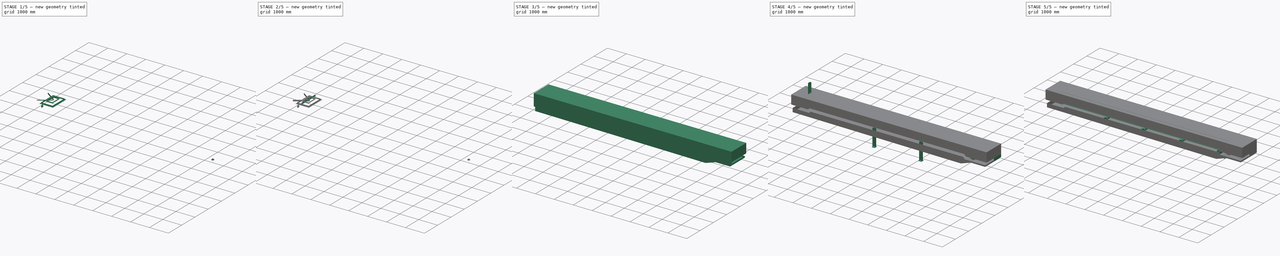
[diagram: build sequence overview — one tinted view per stage of 5, left to right]
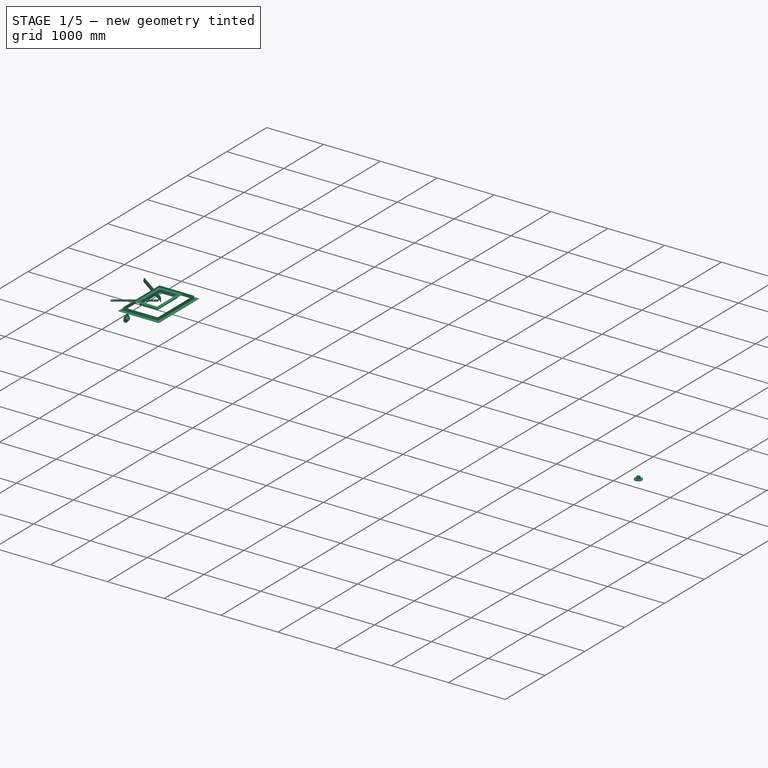
[diagram: stage 1 of 5 — iso view after this stage's code; geometry added in this stage tinted green]
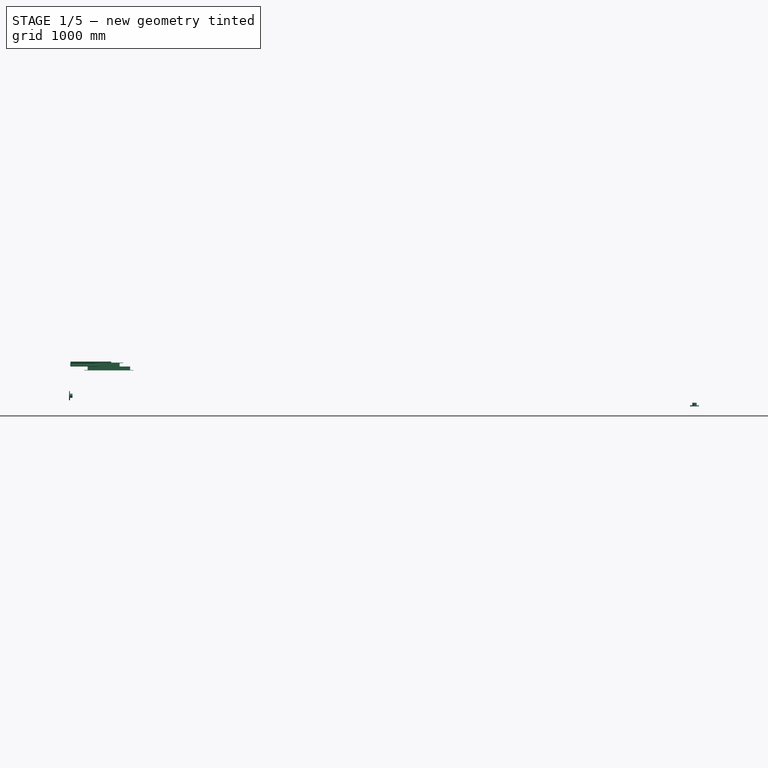
[diagram: stage 1 of 5 — front view after this stage's code; geometry added in this stage tinted green]
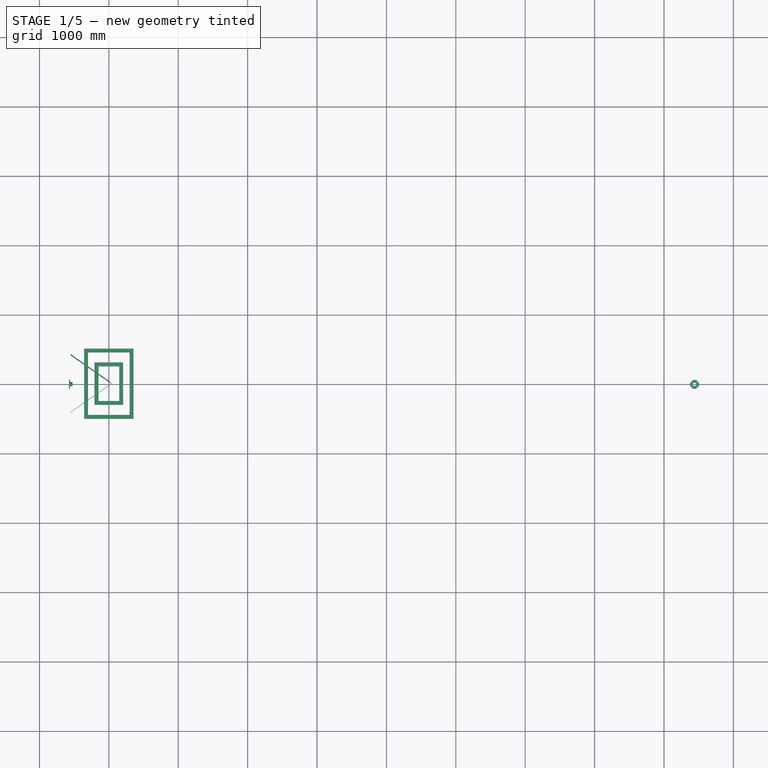
[diagram: stage 1 of 5 — top view after this stage's code; geometry added in this stage tinted green]
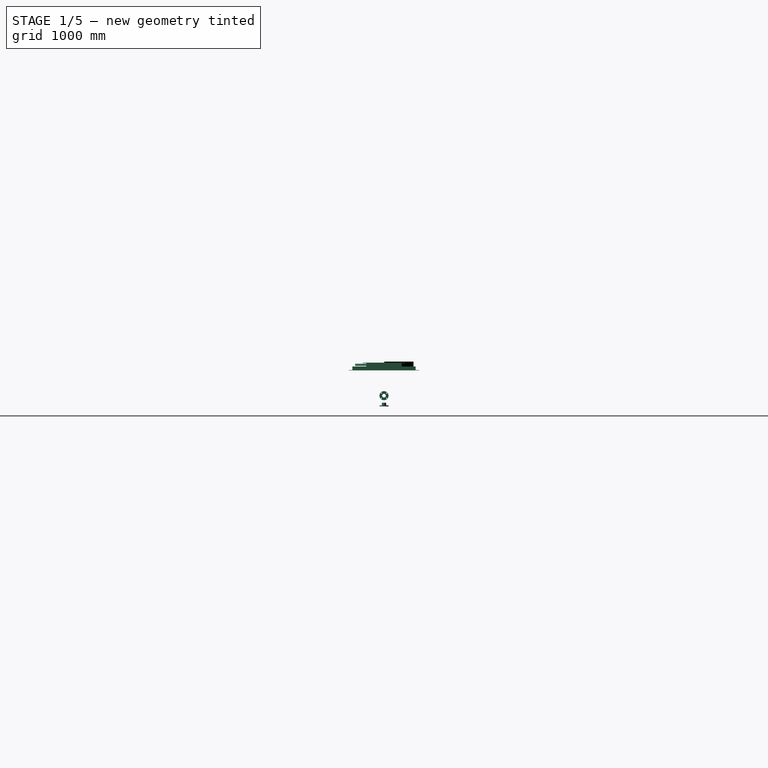
[diagram: stage 1 of 5 — right view after this stage's code; geometry added in this stage tinted green]
FCSTD DOCUMENT  (FreeCAD 1.0R39285 (Git))
Label: BeltCv750BAssy_M
License: All rights reserved
objects: Sketcher::SketchObject×41, App::Part×23, Part::FeaturePython×21, Part::Extrusion×20, Part::MultiFuse×14, PartDesign::Pad×12, Part::Feature×9, Part::Mirroring×9, PartDesign::Body×9, Part::Cut×6, Spreadsheet::Sheet×5, PartDesign::Pocket×5, Part::Sweep×4, PartDesign::LinearPattern×4, PartDesign::Mirrored×2, Part::Compound×1, PartDesign::Chamfer×1
note: 239 computed .brp shape members not serialized (recipe doc carries the construction recipe); baked Part::Feature solids carry a one-line shape summary decoded from their .brp

FEATURE [Sketcher::SketchObject] Sketch004
  ArcFitTolerance = 1e-06
  AttachmentSupport = -> [XY_Plane002]
  FullyConstrained = true
  MakeInternals = false
  MapMode = 5
  expr: Constraints[14] = (Spreadsheet001.B0 + 100) / 2
  sketch-geometry (6):
    g0: LineSegment StartX=-547.686 StartY=425 StartZ=0 EndX=19.5016 EndY=27.8512 EndZ=0
    g1: ArcOfCircle CenterX=0 CenterY=0 CenterZ=0 NormalX=0 NormalY=0 NormalZ=1 AngleXU=0 Radius=34 StartAngle=0 EndAngle=0.959931
    g2: ArcOfCircle CenterX=0 CenterY=0 CenterZ=0 NormalX=0 NormalY=0 NormalZ=1 AngleXU=0 Radius=24 StartAngle=0 EndAngle=0.959931
    g3: LineSegment StartX=13.7658 StartY=19.6596 StartZ=0 EndX=-553.421 EndY=416.808 EndZ=0
    g4: LineSegment StartX=-553.421 StartY=416.808 StartZ=0 EndX=-547.686 EndY=425 EndZ=0
    g5: LineSegment StartX=24 StartY=0 StartZ=0 EndX=34 EndY=0 EndZ=0
  constraints (16):
    c: Tangent(g0,g1) = 1.5708
    c: Coincident(g3,g4)
    c: Coincident(g4,g0)
    c: Coincident(g2,g1)
    c: Coincident(g2,g-1)
    c: Tangent(g2,g3) = -1.5708
    c: Perpendicular(g4,g3)
    c: Parallel(g0,g3)
    c: Horizontal(g5)
    c: PointOnObject(g5,g-1)
    c: Coincident(g1,g5)
    c: Coincident(g2,g5)
    c: Angle(g3,g-1) = 0.610865
    c: Distance(g4,g4) = 10
    c: DistanceY(g-1,g0) = 425
    c: Radius(g1) = 34
FEATURE [PartDesign::Pad] Pad002
  Direction = (0,0,1)
  Length = 70
  Length2 = 10
  Profile = -> Sketch004
  ReferenceAxis = -> Sketch004 [N_Axis]
  Refine = true
  Suppressed = false
  Type = 0
FEATURE [Sketcher::SketchObject] Sketch006
  ArcFitTolerance = 1e-06
  FullyConstrained = false
  MakeInternals = false
  MapMode = 5
  Placement = pos=(0,126.75,0) rot=(0,0.707107,0.707107;3.14159rad)
  sketch-geometry (1):
    g0: Circle CenterX=26.7406 CenterY=25.2413 CenterZ=0 NormalX=0 NormalY=0 NormalZ=1 AngleXU=0 Radius=6
  constraints (2):
    c: Diameter(g0) = 12
    c: Distance(g0,g-3) = 25
FEATURE [PartDesign::Pocket] Pocket002
  BaseFeature = -> Pad002
  Direction = (-1e-16,-1,2e-16)
  Length = 30
  Length2 = 5
  Profile = -> Sketch006
  ReferenceAxis = -> Sketch006 [N_Axis]
  Refine = true
  Suppressed = false
  Type = 0
FEATURE [App::Part] Part022  label="suport"
  Group = -> [Clone,Body004,Compound,Clone001,Sketch042,AngleSteel,Extrude035,Cut004]
  Origin = -> Origin010
  Placement = pos=(175.034,0,98.5343) rot=(0,0,1;0rad)
  expr: .Placement.Base.x = 215 * cos(Spreadsheet001.angle) - 27
  expr: .Placement.Base.z = 25 + 215 * sin(Spreadsheet001.angle)
FEATURE [Spreadsheet::Sheet] Spreadsheet001  label="Spreadsheet"
  cells = A1='beltWidth; B1(B0)=750; A2='angle; B2(angle)=20
FEATURE [Sketcher::SketchObject] Sketch043
  ArcFitTolerance = 1e-06
  AttachmentSupport = -> [XY_Plane030]
  FullyConstrained = false
  MakeInternals = false
  MapMode = 5
  expr: Constraints[10] = 55
  sketch-geometry (5):
    g0: LineSegment StartX=-556.862 StartY=411.885 StartZ=0 EndX=10.3206 EndY=14.7393 EndZ=0
    g1: LineSegment StartX=10.3206 StartY=14.7393 StartZ=0 EndX=13.762 EndY=19.6542 EndZ=0
    g2: LineSegment StartX=13.762 StartY=19.6542 StartZ=0 EndX=-553.421 EndY=416.8 EndZ=0
    g3: LineSegment StartX=-553.421 StartY=416.8 StartZ=0 EndX=-556.862 EndY=411.885 EndZ=0
    g4: LineSegment [constr] StartX=0 StartY=0 StartZ=0 EndX=9.3898 EndY=13.41 EndZ=0
  constraints (13):
    c: Coincident(g0,g1)
    c: Coincident(g1,g2)
    c: Coincident(g2,g3)
    c: Coincident(g3,g0)
    c: Perpendicular(g3,g0)
    c: Parallel(g2,g0)
    c: Distance(g3,g3) = 6
    c: Angle(g2,g-1) = 0.610865
    c: Perpendicular(g0,g1)
    c: Coincident(g4,g-1)
    c: Angle(g-1,g4) = 0.959931
    c: PointOnObject(g1,g4)
    c: DistanceY(g-1,g2) = 416.8
FEATURE [PartDesign::Pad] Pad006
  Direction = (0,0,1)
  Length = 32
  Length2 = 10
  Profile = -> Sketch043
  ReferenceAxis = -> Sketch043 [N_Axis]
  Refine = true
  Suppressed = false
  Type = 0
FEATURE [PartDesign::Mirrored] Mirrored002
  BaseFeature = -> Pad006
  MirrorPlane = -> XZ_Plane030
  Refine = true
  Suppressed = false
  TransformMode = 1
FEATURE [Sketcher::SketchObject] Sketch044
  ArcFitTolerance = 1e-06
  AttachmentSupport = -> [Pad006]
  ExternalGeometry = -> [Pad006]
  FullyConstrained = true
  MakeInternals = false
  MapMode = 5
  Placement = pos=(10.3206,14.7393,0) rot=(0.913318,-0.287968,-0.287968;1.66134rad)
  sketch-geometry (1):
    g0: Circle CenterX=-672.403 CenterY=16 CenterZ=0 NormalX=0 NormalY=0 NormalZ=1 AngleXU=0 Radius=6
  constraints (3):
    c: Diameter(g0) = 12
    c: DistanceY(g-1,g0) = 16
    c: Distance(g0,g-3) = 20
FEATURE [PartDesign::Pocket] Pocket006
  BaseFeature = -> Mirrored002
  Direction = (0.573576,0.819152,2e-16)
  Length = 5
  Length2 = 5
  Profile = -> Sketch044
  ReferenceAxis = -> Sketch044 [N_Axis]
  Refine = true
  Suppressed = false
  Type = 1
FEATURE [PartDesign::LinearPattern] LinearPattern004
  BaseFeature = -> Pocket006
  Direction = -> Sketch044 [H_Axis]
  Length = 600
  Mode = 0
  Occurrences = 4
  Offset = 200
  Originals = -> [Pocket006]
  Refine = true
  Suppressed = false
  TransformMode = 0
FEATURE [Part::Mirroring] Mirror007  label="clampingPlate (mirrored)"
  Base = (-500,0,0)
  Normal = (0,-1,0)
  Source = -> Part007
FEATURE [Part::MultiFuse] Fusion018  label="ClampingPlate"
  Refine = true
  Shapes = -> [Mirror007,Part007]
FEATURE [App::Part] Part006  label="Scraper"
  Group = -> [Part004,Part022,Spreadsheet001,Mirror002,Part021,Fusion016,Part001,Mirror006,Fusion017,Part007,Mirror007,Fusion018]
  Origin = -> Origin011
  Placement = pos=(774.6,0,-153.3) rot=(0,0,1;0rad)
  mass = 20.31
FEATURE [Sketcher::SketchObject] Sketch045
  ArcFitTolerance = 1e-06
  AttachmentSupport = -> [XZ_Plane031]
  FullyConstrained = true
  MakeInternals = false
  MapMode = 5
  Placement = pos=(0,0,0) rot=(1,0,0;1.5708rad)
  expr: Constraints[11] = Spreadsheet002.h0 + 10
  expr: Constraints[8] = Spreadsheet002.w0
  expr: Constraints[9] = Spreadsheet002.sita0
  sketch-geometry (5):
    g0: LineSegment StartX=-150 StartY=0 StartZ=0 EndX=150 EndY=0 EndZ=0
    g1: LineSegment StartX=150 StartY=0 StartZ=0 EndX=150 EndY=60 EndZ=0
    g2: LineSegment StartX=150 StartY=60 StartZ=0 EndX=-150 EndY=60 EndZ=0
    g3: LineSegment StartX=-150 StartY=60 StartZ=0 EndX=-150 EndY=0 EndZ=0
    g4: GeomPoint X=-1.15e-14 Y=60 Z=0
  constraints (12):
    c: PointOnObject(g0,g-1)
    c: Coincident(g0,g1)
    c: Vertical(g1)
    c: Coincident(g1,g2)
    c: Coincident(g2,g3)
    c: Coincident(g3,g0)
    c: Vertical(g3)
    c: Symmetric(g0,g0,g-2)
    c: DistanceX(g0,g0) = 300
    c: Angle(g0,g2) = 0
    c: Symmetric(g2,g2,g4)
    c: DistanceY(g-1,g4) = 60
FEATURE [PartDesign::Pad] Pad007
  Direction = (0,-1,2e-16)
  Length = 500
  Length2 = 10
  Midplane = true
  Placement = pos=(0,0,0) rot=(1,0,0;1.5708rad)
  Profile = -> Sketch045
  ReferenceAxis = -> Sketch045 [N_Axis]
  Refine = true
  Suppressed = false
  Type = 0
  expr: Length = Spreadsheet002.l0
FEATURE [PartDesign::Body] Body006  label="Body008"
  AllowCompound = false
  Group = -> [Sketch045,Pad007]
  Origin = -> Origin031
  Tip = -> Pad007
FEATURE [Sketcher::SketchObject] Sketch046
  ArcFitTolerance = 1e-06
  AttachmentSupport = -> [XZ_Plane032]
  FullyConstrained = true
  MakeInternals = false
  MapMode = 5
  Placement = pos=(0,0,0) rot=(1,0,0;1.5708rad)
  expr: .Constraints.sita = Spreadsheet002.sita0
  expr: Constraints[11] = Spreadsheet002.h0
  expr: Constraints[8] = Spreadsheet002.w0 + Spreadsheet002.t0 * 2
  sketch-geometry (5):
    g0: LineSegment StartX=-156 StartY=0 StartZ=0 EndX=156 EndY=0 EndZ=0
    g1: LineSegment StartX=156 StartY=0 StartZ=0 EndX=156 EndY=50 EndZ=0
    g2: LineSegment StartX=156 StartY=50 StartZ=0 EndX=-156 EndY=50 EndZ=0
    g3: LineSegment StartX=-156 StartY=50 StartZ=0 EndX=-156 EndY=0 EndZ=0
    g4: GeomPoint X=-6.2e-15 Y=50 Z=0
  constraints (12):
    c: PointOnObject(g0,g-1)
    c: Coincident(g0,g1)
    c: Vertical(g1)
    c: Coincident(g1,g2)
    c: Coincident(g2,g3)
    c: Coincident(g3,g0)
    c: Vertical(g3)
    c: Symmetric(g0,g0,g-2)
    c: DistanceX(g0,g0) = 312
    c: Angle(g0,g2) = 0  'sita'
    c: Symmetric(g2,g2,g4)
    c: DistanceY(g-1,g4) = 50
FEATURE [PartDesign::Pad] Pad008
  Direction = (0,-1,2e-16)
  Length = 512
  Length2 = 10
  Midplane = true
  Placement = pos=(0,0,0) rot=(1,0,0;1.5708rad)
  Profile = -> Sketch046
  ReferenceAxis = -> Sketch046 [N_Axis]
  Refine = true
  Suppressed = false
  Type = 0
  expr: Length = Spreadsheet002.l0 + Spreadsheet002.t0 * 2
FEATURE [Sketcher::SketchObject] Sketch047
  ArcFitTolerance = 1e-06
  AttachmentSupport = -> [Pad008]
  FullyConstrained = true
  MakeInternals = false
  MapMode = 5
  Placement = pos=(0,2.2e-14,50) rot=(0,0,1;3.14159rad)
  expr: .AttachmentOffset.Base.x = -<<shtInlet>>.h0 * sin(<<shtInlet>>.sita0) * cos(<<shtInlet>>.sita0)
  expr: Constraints[10] = Spreadsheet002.w0 + Spreadsheet002.t0 * 2 + Spreadsheet002.b0 * 2
  expr: Constraints[11] = Spreadsheet002.l0 + Spreadsheet002.t0 * 2 + Spreadsheet002.b0 * 2
  sketch-geometry (5):
    g0: LineSegment StartX=-206 StartY=-306 StartZ=0 EndX=206 EndY=-306 EndZ=0
    g1: LineSegment StartX=206 StartY=-306 StartZ=0 EndX=206 EndY=306 EndZ=0
    g2: LineSegment StartX=206 StartY=306 StartZ=0 EndX=-206 EndY=306 EndZ=0
    g3: LineSegment StartX=-206 StartY=306 StartZ=0 EndX=-206 EndY=-306 EndZ=0
    g4: GeomPoint [constr] X=0 Y=0 Z=0
  constraints (12):
    c: Coincident(g0,g1)
    c: Coincident(g1,g2)
    c: Coincident(g2,g3)
    c: Coincident(g3,g0)
    c: Horizontal(g0)
    c: Horizontal(g2)
    c: Vertical(g1)
    c: Vertical(g3)
    c: Symmetric(g2,g0,g4)
    c: Coincident(g4,g-1)
    c: DistanceX(g2,g2) = 412
    c: DistanceY(g3,g3) = 612
FEATURE [PartDesign::Pad] Pad009
  BaseFeature = -> Pad008
  Direction = (0,0,1)
  Length = 6
  Length2 = 10
  Placement = pos=(0,0,0) rot=(1,0,0;1.5708rad)
  Profile = -> Sketch047
  ReferenceAxis = -> Sketch047 [N_Axis]
  Refine = true
  Suppressed = false
  Type = 0
FEATURE [PartDesign::Body] Body007  label="Body009"
  AllowCompound = false
  Group = -> [Sketch046,Pad008,Sketch047,Pad009]
  Origin = -> Origin032
  Tip = -> Pad009
FEATURE [Part::Cut] Cut005
  Base = -> Body007
  Refine = true
  Tool = -> Body006
FEATURE [Spreadsheet::Sheet] Spreadsheet002  label="shtInlet"
  cells = A1='inlet; A2='w0; B2(w0)=300; A3='l0; B3(l0)=500; A4='t0; B4(t0)=6; A5='h0; B5(h0)=50; A6='b0; B6(b0)=50; A7='sita0; B7(sita0)=0
FEATURE [App::Part] Part023  label="inlet"
  Group = -> [Spreadsheet002,Body006,Body007,Cut005]
  Origin = -> Origin033
  Placement = pos=(500,0,376.5) rot=(0,0,1;0rad)
FEATURE [App::Part] Part013  label="Cover"
  Group = -> [Sketch021,Extrude012,Extrude033,Sketch020,Sketch034,Cut,Part023]
  Origin = -> Origin017
  mass = 512.57
FEATURE [Sketcher::SketchObject] Sketch048
  ArcFitTolerance = 1e-06
  AttachmentSupport = -> [XZ_Plane034]
  FullyConstrained = true
  MakeInternals = false
  MapMode = 5
  Placement = pos=(0,0,0) rot=(1,0,0;1.5708rad)
  expr: Constraints[11] = Spreadsheet003.h0 + 10
  expr: Constraints[8] = Spreadsheet003.w0
  expr: Constraints[9] = Spreadsheet003.sita0
  sketch-geometry (5):
    g0: LineSegment StartX=-300 StartY=0 StartZ=0 EndX=300 EndY=0 EndZ=0
    g1: LineSegment StartX=300 StartY=0 StartZ=0 EndX=300 EndY=60 EndZ=0
    g2: LineSegment StartX=300 StartY=60 StartZ=0 EndX=-300 EndY=60 EndZ=0
    g3: LineSegment StartX=-300 StartY=60 StartZ=0 EndX=-300 EndY=0 EndZ=0
    g4: GeomPoint X=-2.9e-15 Y=60 Z=0
  constraints (12):
    c: PointOnObject(g0,g-1)
    c: Coincident(g0,g1)
    c: Vertical(g1)
    c: Coincident(g1,g2)
    c: Coincident(g2,g3)
    c: Coincident(g3,g0)
    c: Vertical(g3)
    c: Symmetric(g0,g0,g-2)
    c: DistanceX(g0,g0) = 600
    c: Angle(g0,g2) = 0
    c: Symmetric(g2,g2,g4)
    c: DistanceY(g-1,g4) = 60
FEATURE [PartDesign::Pad] Pad003
  Direction = (0,-1,2e-16)
  Length = 900
  Length2 = 10
  Midplane = true
  Placement = pos=(0,0,0) rot=(1,0,0;1.5708rad)
  Profile = -> Sketch048
  ReferenceAxis = -> Sketch048 [N_Axis]
  Refine = true
  Suppressed = false
  Type = 0
  expr: Length = Spreadsheet003.l0
FEATURE [PartDesign::Body] Body002
  AllowCompound = false
  Group = -> [Sketch048,Pad003]
  Origin = -> Origin034
  Tip = -> Pad003
FEATURE [Sketcher::SketchObject] Sketch049
  ArcFitTolerance = 1e-06
  AttachmentSupport = -> [XZ_Plane004]
  FullyConstrained = true
  MakeInternals = false
  MapMode = 5
  Placement = pos=(0,0,0) rot=(1,0,0;1.5708rad)
  expr: .Constraints.sita = Spreadsheet003.sita0
  expr: Constraints[11] = Spreadsheet003.h0
  expr: Constraints[8] = Spreadsheet003.w0 + Spreadsheet003.t0 * 2
  sketch-geometry (5):
    g0: LineSegment StartX=-306 StartY=0 StartZ=0 EndX=306 EndY=0 EndZ=0
    g1: LineSegment StartX=306 StartY=0 StartZ=0 EndX=306 EndY=50 EndZ=0
    g2: LineSegment StartX=306 StartY=50 StartZ=0 EndX=-306 EndY=50 EndZ=0
    g3: LineSegment StartX=-306 StartY=50 StartZ=0 EndX=-306 EndY=0 EndZ=0
    g4: GeomPoint X=-6.4e-15 Y=50 Z=0
  constraints (12):
    c: PointOnObject(g0,g-1)
    c: Coincident(g0,g1)
    c: Vertical(g1)
    c: Coincident(g1,g2)
    c: Coincident(g2,g3)
    c: Coincident(g3,g0)
    c: Vertical(g3)
    c: Symmetric(g0,g0,g-2)
    c: DistanceX(g0,g0) = 612
    c: Angle(g0,g2) = 0  'sita'
    c: Symmetric(g2,g2,g4)
    c: DistanceY(g-1,g4) = 50
FEATURE [PartDesign::Pad] Pad010
  Direction = (0,-1,2e-16)
  Length = 912
  Length2 = 10
  Midplane = true
  Placement = pos=(0,0,0) rot=(1,0,0;1.5708rad)
  Profile = -> Sketch049
  ReferenceAxis = -> Sketch049 [N_Axis]
  Refine = true
  Suppressed = false
  Type = 0
  expr: Length = Spreadsheet003.l0 + Spreadsheet003.t0 * 2
FEATURE [Sketcher::SketchObject] Sketch050
  ArcFitTolerance = 1e-06
  AttachmentSupport = -> [Pad010]
  FullyConstrained = true
  MakeInternals = false
  MapMode = 5
  Placement = pos=(0,2.2e-14,50) rot=(0,0,1;3.14159rad)
  expr: .AttachmentOffset.Base.x = -<<shtOutlet>>.h0 * sin(<<shtOutlet>>.sita0) * cos(<<shtOutlet>>.sita0)
  expr: Constraints[10] = (Spreadsheet003.w0 + Spreadsheet003.t0 * 2 + Spreadsheet003.b0 * 2) / cos(Spreadsheet003.sita0)
  expr: Constraints[11] = Spreadsheet003.l0 + Spreadsheet003.t0 * 2 + Spreadsheet003.b0 * 2
  sketch-geometry (5):
    g0: LineSegment StartX=-356 StartY=-506 StartZ=0 EndX=356 EndY=-506 EndZ=0
    g1: LineSegment StartX=356 StartY=-506 StartZ=0 EndX=356 EndY=506 EndZ=0
    g2: LineSegment StartX=356 StartY=506 StartZ=0 EndX=-356 EndY=506 EndZ=0
    g3: LineSegment StartX=-356 StartY=506 StartZ=0 EndX=-356 EndY=-506 EndZ=0
    g4: GeomPoint [constr] X=0 Y=0 Z=0
  constraints (12):
    c: Coincident(g0,g1)
    c: Coincident(g1,g2)
    c: Coincident(g2,g3)
    c: Coincident(g3,g0)
    c: Horizontal(g0)
    c: Horizontal(g2)
    c: Vertical(g1)
    c: Vertical(g3)
    c: Symmetric(g2,g0,g4)
    c: Coincident(g4,g-1)
    c: DistanceX(g2,g2) = 712
    c: DistanceY(g3,g3) = 1012
FEATURE [PartDesign::Pad] Pad011
  BaseFeature = -> Pad010
  Direction = (0,0,1)
  Length = 6
  Length2 = 10
  Placement = pos=(0,0,0) rot=(1,0,0;1.5708rad)
  Profile = -> Sketch050
  ReferenceAxis = -> Sketch050 [N_Axis]
  Refine = true
  Suppressed = false
  Type = 0
FEATURE [PartDesign::Body] Body008  label="Body010"
  AllowCompound = false
  Group = -> [Sketch049,Pad010,Sketch050,Pad011]
  Origin = -> Origin004
  Tip = -> Pad011
FEATURE [Part::Cut] Cut001
  Base = -> Body008
  Placement = pos=(0,0,0) rot=(0,1,0;3.14159rad)
  Refine = true
  Tool = -> Body002
FEATURE [Spreadsheet::Sheet] Spreadsheet003  label="shtOutlet"
  cells = A1='outlet; A2='w0; B2(w0)=600; A3='l0; B3(l0)=900; A4='t0; B4(t0)=6; A5='h0; B5(h0)=50; A6='b0; B6(b0)=50; A7='sita0; B7(sita0)=0
FEATURE [App::Part] Part024  label="outlet"
  Group = -> [Spreadsheet003,Body002,Body008,Cut001]
  Origin = -> Origin005
  Placement = pos=(9430,0,-347.1) rot=(0,0,1;0rad)
  expr: .Placement.Base.x = <<shtBeltCvAssy>>.C0 + 430
FEATURE [Part::FeaturePython] Single_flange_straight_pipe  # WARN: FeaturePython — macro-defined, semantics opaque (R4)
  L = 50
  Placement = pos=(-574.7,0,-420) rot=(0,0,1;0rad)
  dia = 6
  fittings = 06_Single_flange_straight_pipe
  material = 0
  standard = 0
  standard2 = 1
FEATURE [Part::FeaturePython] Single_flange_straight_pipe001  # WARN: FeaturePython — macro-defined, semantics opaque (R4)
  L = 50
  Placement = pos=(8440,0,-573.2) rot=(0,1,0;4.71239rad)
  dia = 6
  fittings = 06_Single_flange_straight_pipe
  material = 0
  standard = 0
  standard2 = 1
  expr: .Placement.Base.x = <<shtBeltCvAssy>>.C0 - 560
FEATURE [App::Part] Part014  label="waterReceptacle"
  Group = -> [Sketch024,Extrude015,Sketch023,Sketch035,Extrude034,Cut003,Part024,Single_flange_straight_pipe,Single_flange_straight_pipe001]
  Origin = -> Origin018
  mass = 478.31
FEATURE [App::Part] Part017  label="body"
  Group = -> [Part015,Part014,Part013,Part012,Part011,Part010]
  Origin = -> Origin020
  expr: .Placement.Rotation.Angle = -<<shtBeltCvAssy>>.k
FEATURE [App::Part] Part002  label="750B_motorpulley"
  Group = -> [Spreadsheet,Part017,Part019,Sketch033,Part006]
  Origin = -> Origin007
  expr: .Placement.Base.z = <<shtBeltCvAssy>>.Ht - 1000
FEATURE [Spreadsheet::Sheet] Parts_List
  cells = A1='No; B1='Name; C1='Standard; D1='Count; E1='Unit[kg]; F1='Mass[kg]; A2=1; B2='bendPully; D2=1; E2=56.6; F2=56.6; A3=2; B3='Skirt; D3=1; E3=59.35; F3=59.35; A4=3; B4='Frame; D4=1; E4=209.58; F4=209.58; A5=4; B5='Cover; D5=1; E5=512.57; F5=512.57; A6=5; B6='waterReceptacle; D6=1; E6=478.31; F6=478.31; A7=6; B7='Belt; D7=1; E7=142.69; F7=142.69; A8=7; B8='Post; D8=1; E8=85.6; F8=85.6; A9=8; B9='CPM5_4175; D9=1; E9=1076.51; F9=1076.51; A10=9; B10='Carrier_750; D10=8; E10=86.2; F10=689.6; A11=10; B11='Self_Aligning_Carrier_750; D11=1; E11=112.63; F11=112.63; A12=11; B12='Return_750; D12=3; E12=81.77; F12=245.31; A13=12; B13='Self_Aligning_Return_750; D13=1; E13=114.73; F13=114.73; A14=13; B14='takeUpAssy; D14=1; E14=108.33; F14=108.33; A15=14; B15='Scraper; D15=1; E15=20.31; F15=20.31; F16=3912.12
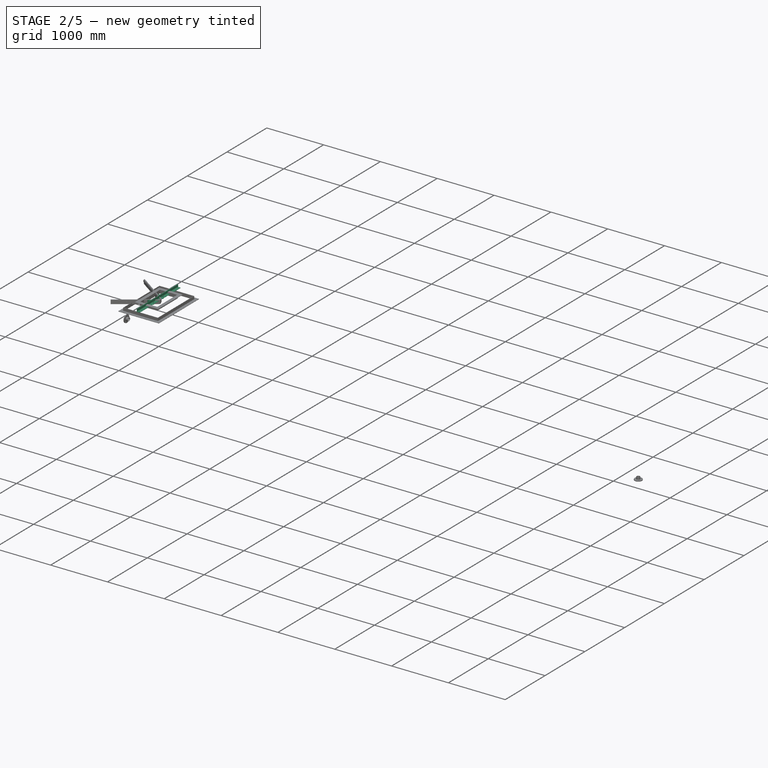
[diagram: stage 2 of 5 — iso view after this stage's code; geometry added in this stage tinted green]
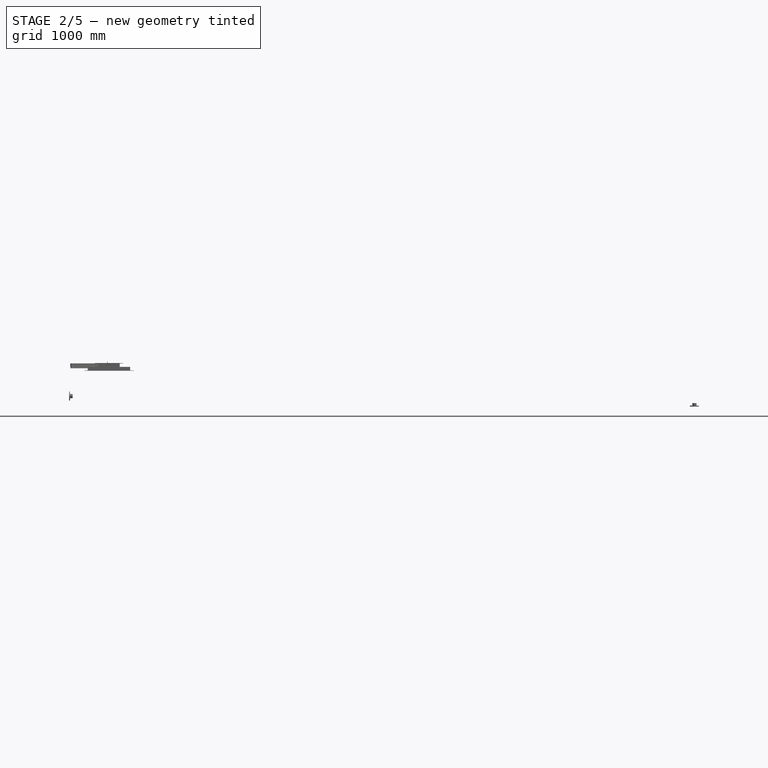
[diagram: stage 2 of 5 — front view after this stage's code; geometry added in this stage tinted green]
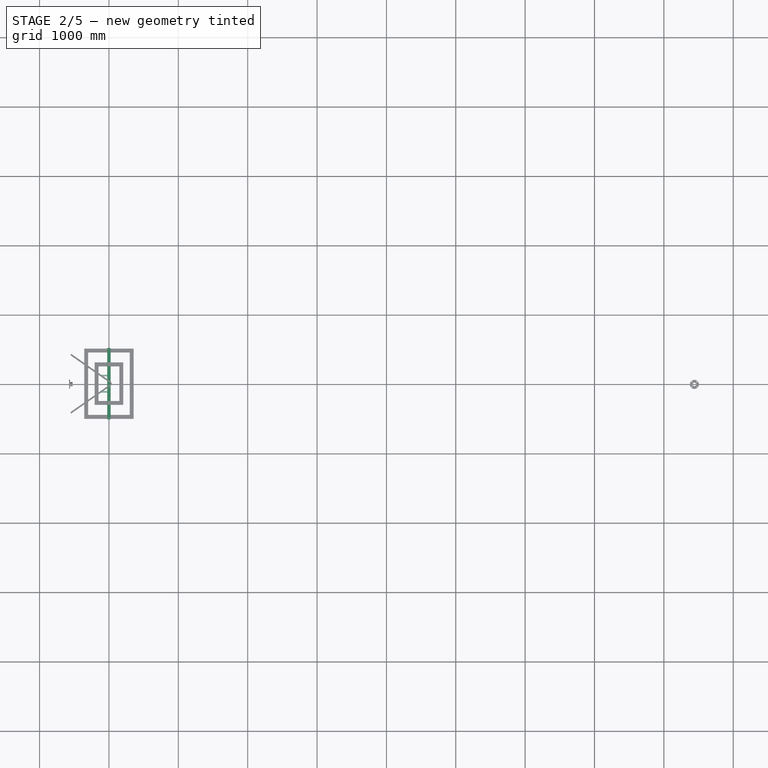
[diagram: stage 2 of 5 — top view after this stage's code; geometry added in this stage tinted green]
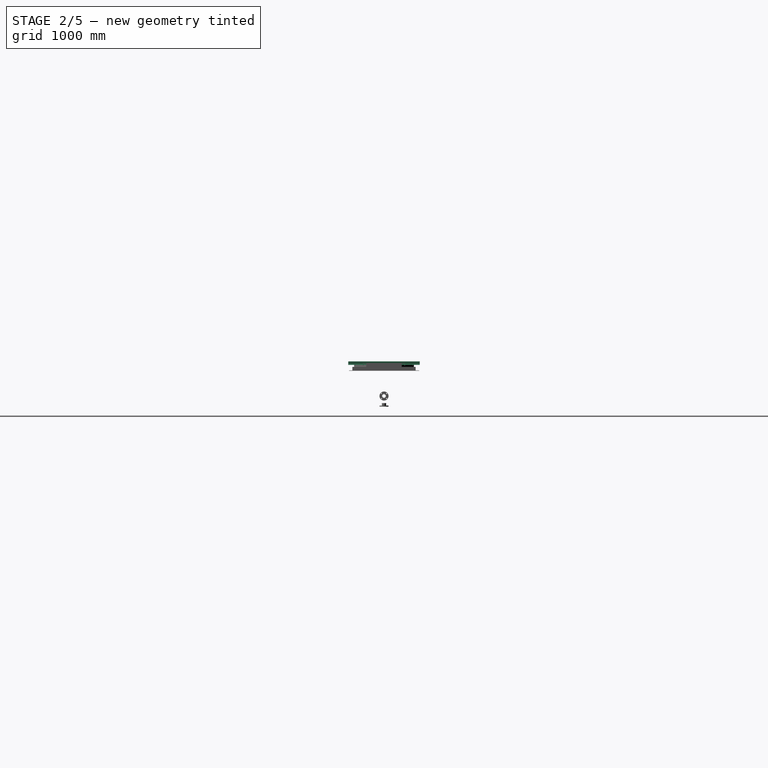
[diagram: stage 2 of 5 — right view after this stage's code; geometry added in this stage tinted green]
FEATURE [Sketcher::SketchObject] Sketch036
  ArcFitTolerance = 1e-06
  AttachmentSupport = -> [XY_Plane027]
  FullyConstrained = true
  MakeInternals = false
  MapMode = 5
  sketch-geometry (6):
    g0: LineSegment StartX=-547.686 StartY=425 StartZ=0 EndX=19.5016 EndY=27.8512 EndZ=0
    g1: ArcOfCircle CenterX=0 CenterY=0 CenterZ=0 NormalX=0 NormalY=0 NormalZ=1 AngleXU=0 Radius=34 StartAngle=0 EndAngle=0.959931
    g2: ArcOfCircle CenterX=0 CenterY=0 CenterZ=0 NormalX=0 NormalY=0 NormalZ=1 AngleXU=0 Radius=40 StartAngle=0 EndAngle=0.959931
    g3: LineSegment StartX=22.9431 StartY=32.7661 StartZ=0 EndX=-544.244 EndY=429.915 EndZ=0
    g4: LineSegment StartX=-544.244 StartY=429.915 StartZ=0 EndX=-547.686 EndY=425 EndZ=0
    g5: LineSegment StartX=40 StartY=0 StartZ=0 EndX=34 EndY=0 EndZ=0
  constraints (16):
    c: Tangent(g0,g1) = 1.5708
    c: Coincident(g3,g4)
    c: Coincident(g4,g0)
    c: Coincident(g2,g1)
    c: Coincident(g2,g-1)
    c: Tangent(g2,g3) = -1.5708
    c: Perpendicular(g4,g3)
    c: Parallel(g0,g3)
    c: Radius(g1) = 34
    c: Horizontal(g5)
    c: PointOnObject(g5,g-1)
    c: Coincident(g1,g5)
    c: Coincident(g2,g5)
    c: Angle(g3,g-1) = 0.610865
    c: Distance(g4,g4) = 6
    c: DistanceY(g-1,g0) = 425
FEATURE [PartDesign::Pad] Pad
  Direction = (0,0,1)
  Length = 50
  Length2 = 10
  Profile = -> Sketch036
  ReferenceAxis = -> Sketch036 [N_Axis]
  Refine = true
  Suppressed = false
  Type = 0
FEATURE [Sketcher::SketchObject] Sketch037
  ArcFitTolerance = 1e-06
  AttachmentSupport = -> [XY_Plane027]
  FullyConstrained = false
  MakeInternals = false
  MapMode = 5
  sketch-geometry (9):
    g0: LineSegment StartX=-94.6058 StartY=107.75 StartZ=0 EndX=-103.175 EndY=113.75 EndZ=0
    g1: LineSegment StartX=-103.175 StartY=113.75 StartZ=0 EndX=-1.74057 EndY=113.75 EndZ=0
    g2: LineSegment StartX=-1.74057 StartY=113.75 StartZ=0 EndX=-1.74057 EndY=107.75 EndZ=0
    g3: LineSegment StartX=-1.74057 StartY=107.75 StartZ=0 EndX=-94.6058 EndY=107.75 EndZ=0
    g4: LineSegment StartX=-113.172 StartY=120.75 StartZ=0 EndX=-121.741 EndY=126.75 EndZ=0
    g5: LineSegment StartX=-121.741 StartY=126.75 StartZ=0 EndX=-1.74057 EndY=126.75 EndZ=0
    g6: LineSegment StartX=-1.74057 StartY=126.75 StartZ=0 EndX=-1.74057 EndY=120.75 EndZ=0
    g7: LineSegment StartX=-1.74057 StartY=120.75 StartZ=0 EndX=-113.172 EndY=120.75 EndZ=0
    g8: LineSegment [constr] StartX=-135.198 StartY=117.25 StartZ=0 EndX=130.377 EndY=117.25 EndZ=0
  constraints (26):
    c: Coincident(g0,g1)
    c: Horizontal(g1)
    c: Coincident(g1,g2)
    c: Vertical(g2)
    c: Coincident(g2,g3)
    c: Coincident(g3,g0)
    c: Horizontal(g3)
    c: Coincident(g4,g5)
    c: Horizontal(g5)
    c: Coincident(g5,g6)
    c: Vertical(g6)
    c: Coincident(g6,g7)
    c: Coincident(g7,g4)
    c: Horizontal(g7)
    c: DistanceX(g5,g5) = 120
    c: Parallel(g4,g-3)
    c: Horizontal(g8)
    c: Distance(g8,g-1) = 117.25
    c: DistanceY(g6,g6) = 6
    c: DistanceY(g2,g2) = 6
    c: Vertical(g1,g6)
    c: PointOnObject(g4,g-3)
    c: Distance(g6,g8) = 3.5
    c: PointOnObject(g0,g-3)
    c: Parallel(g0,g-3)
    c: Distance(g1,g8) = 3.5
FEATURE [PartDesign::Pad] Pad001
  BaseFeature = -> Pad
  Direction = (0,0,1)
  Length = 50
  Length2 = 10
  Profile = -> Sketch037
  ReferenceAxis = -> Sketch037 [N_Axis]
  Refine = true
  Suppressed = false
  Type = 0
FEATURE [Sketcher::SketchObject] Sketch038
  ArcFitTolerance = 1e-06
  FullyConstrained = false
  MakeInternals = false
  MapMode = 5
  Placement = pos=(0,126.75,0) rot=(0,0.707107,0.707107;3.14159rad)
  sketch-geometry (1):
    g0: Circle CenterX=26.7406 CenterY=25.2413 CenterZ=0 NormalX=0 NormalY=0 NormalZ=1 AngleXU=0 Radius=6
  constraints (2):
    c: Diameter(g0) = 12
    c: Distance(g0,g-3) = 25
FEATURE [PartDesign::Pocket] Pocket
  BaseFeature = -> Pad001
  Direction = (0,-1,2e-16)
  Length = 30
  Length2 = 5
  Profile = -> Sketch038
  ReferenceAxis = -> Sketch038 [N_Axis]
  Refine = true
  Suppressed = false
  Type = 0
FEATURE [Sketcher::SketchObject] Sketch039
  ArcFitTolerance = 1e-06
  AttachmentSupport = -> [Pocket002]
  ExternalGeometry = -> [Pocket002]
  FullyConstrained = true
  MakeInternals = false
  MapMode = 5
  Placement = pos=(13.7658,19.6596,0) rot=(0.913318,-0.287968,-0.287968;1.66134rad)
  sketch-geometry (1):
    g0: Circle CenterX=-672.408 CenterY=45 CenterZ=0 NormalX=0 NormalY=0 NormalZ=1 AngleXU=0 Radius=6
  constraints (3):
    c: DistanceY(g-1,g0) = 45
    c: Diameter(g0) = 12
    c: Distance(g0,g-3) = 20
FEATURE [PartDesign::Pocket] Pocket003
  BaseFeature = -> Pocket002
  Direction = (0.573576,0.819152,0)
  Length = 5
  Length2 = 5
  Profile = -> Sketch039
  ReferenceAxis = -> Sketch039 [N_Axis]
  Refine = true
  Suppressed = false
  Type = 1
FEATURE [PartDesign::LinearPattern] LinearPattern001
  BaseFeature = -> Pocket003
  Direction = -> Sketch039 [H_Axis]
  Length = 600
  Mode = 0
  Occurrences = 4
  Offset = 200
  Originals = -> [Pocket003]
  Refine = true
  Suppressed = false
  TransformMode = 0
FEATURE [PartDesign::Mirrored] Mirrored001
  BaseFeature = -> LinearPattern001
  MirrorPlane = -> XZ_Plane002
  Refine = true
  Suppressed = false
  TransformMode = 1
FEATURE [App::Part] Part004  label="LinkPlate"
  Group = -> [Mirror001,Body003,Fusion015]
  Origin = -> Origin008
  Placement = pos=(-27,0,25) rot=(0,1,0;-0.349066rad)
  expr: .Placement.Base.z = 25
  expr: .Placement.Rotation.Angle = -Spreadsheet001.angle
FEATURE [Sketcher::SketchObject] Sketch041
  ArcFitTolerance = 1e-06
  AttachmentSupport = -> [XZ_Plane029]
  FullyConstrained = true
  MakeInternals = false
  MapMode = 5
  Placement = pos=(0,0,0) rot=(1,0,0;1.5708rad)
  sketch-geometry (5):
    g0: Circle CenterX=0 CenterY=0 CenterZ=0 NormalX=0 NormalY=0 NormalZ=1 AngleXU=0 Radius=7
    g1: ArcOfCircle CenterX=0 CenterY=0 CenterZ=0 NormalX=0 NormalY=0 NormalZ=1 AngleXU=0 Radius=25 StartAngle=3.14159 EndAngle=6.28319
    g2: LineSegment StartX=-25 StartY=3.1e-15 StartZ=0 EndX=-25 EndY=30 EndZ=0
    g3: LineSegment StartX=-25 StartY=30 StartZ=0 EndX=25 EndY=30 EndZ=0
    g4: LineSegment StartX=25 StartY=30 StartZ=0 EndX=25 EndY=-7.1e-15 EndZ=0
  constraints (13):
    c: Coincident(g0,g-1)
    c: Coincident(g1,g0)
    c: PointOnObject(g1,g-1)
    c: PointOnObject(g1,g-1)
    c: Tangent(g1,g2) = 1.5708
    c: Coincident(g2,g3)
    c: Horizontal(g3)
    c: Coincident(g3,g4)
    c: Coincident(g4,g1)
    c: Vertical(g4)
    c: DistanceX(g3,g3) = 50
    c: DistanceY(g-1,g2) = 30
    c: Diameter(g0) = 14
FEATURE [PartDesign::Pad] Pad005
  Direction = (0,-1,2e-16)
  Length = 6
  Length2 = 10
  Midplane = true
  Placement = pos=(0,0,0) rot=(1,0,0;1.5708rad)
  Profile = -> Sketch041
  ReferenceAxis = -> Sketch041 [N_Axis]
  Refine = true
  Suppressed = false
  Type = 0
FEATURE [Part::FeaturePython] AngleSteel  # WARN: FeaturePython — macro-defined, semantics opaque (R4)
  A = 50
  B = 50
  L = 1030
  Placement = pos=(0,-515,55) rot=(1,0,0;4.71239rad)
  Solid = true
  g0 = 7.85
  mass = 4.56326
  size = 7
  standard = SS_Equal
  t = 6
  type = 00_Angle
  expr: .Placement.Base.y = -(Spreadsheet001.B0 + 280) / 2
  expr: L = Spreadsheet001.B0 + 280
FEATURE [Sketcher::SketchObject] Sketch042
  ArcFitTolerance = 1e-06
  AttachmentSupport = -> [AngleSteel]
  ExternalGeometry = -> [AngleSteel]
  FullyConstrained = true
  MakeInternals = false
  MapMode = 5
  Placement = pos=(0,-515,36) rot=(0,0,1;0rad)
  sketch-geometry (2):
    g0: Circle CenterX=5 CenterY=1010 CenterZ=0 NormalX=0 NormalY=0 NormalZ=1 AngleXU=0 Radius=7.5
    g1: Circle CenterX=5 CenterY=20 CenterZ=0 NormalX=0 NormalY=0 NormalZ=1 AngleXU=0 Radius=7.5
  constraints (6):
    c: Diameter(g0) = 15
    c: Distance(g0,g-4) = 30
    c: Diameter(g1) = 15
    c: DistanceY(g-1,g1) = 20
    c: DistanceX(g-4,g1) = 30
    c: Distance(g0,g-3) = 20
FEATURE [Part::Extrusion] Extrude035
  Base = -> Sketch042
  Dir = (0,0,1)
  DirMode = 2
  FaceMakerClass = Part::FaceMakerBullseye
  FaceMakerMode = 3
  LengthFwd = 10
  LengthRev = 0
  Reversed = true
  Solid = true
  Symmetric = false
FEATURE [Part::Cut] Cut004
  Base = -> AngleSteel
  Refine = true
  Tool = -> Extrude035
FEATURE [PartDesign::LinearPattern] LinearPattern
  BaseFeature = -> Pocket
  Length = 500
  Mode = 0
  Occurrences = 4
  Offset = 166.667
  Refine = true
  Reversed = true
  Suppressed = false
  TransformMode = 0
FEATURE [Sketcher::SketchObject] Sketch015
  ArcFitTolerance = 1e-06
  AttachmentSupport = -> [LinearPattern]
  ExternalGeometry = -> [LinearPattern]
  FullyConstrained = true
  MakeInternals = false
  MapMode = 5
  Placement = pos=(22.9431,32.7661,0) rot=(0.217607,0.690162,0.690162;2.71306rad)
  sketch-geometry (1):
    g0: Circle CenterX=663.839 CenterY=25 CenterZ=0 NormalX=0 NormalY=0 NormalZ=1 AngleXU=0 Radius=6
  constraints (3):
    c: Diameter(g0) = 12
    c: DistanceY(g-1,g0) = 25
    c: Distance(g0,g-3) = 20
FEATURE [PartDesign::Pocket] Pocket005
  BaseFeature = -> Pocket
  Direction = (-0.573576,-0.819152,0)
  Length = 5
  Length2 = 5
  Profile = -> Sketch015
  ReferenceAxis = -> Sketch015 [N_Axis]
  Refine = true
  Suppressed = false
  Type = 1
FEATURE [PartDesign::LinearPattern] LinearPattern003
  BaseFeature = -> Pocket005
  Direction = -> Sketch015 [H_Axis]
  Length = 600
  Mode = 0
  Occurrences = 4
  Offset = 200
  Originals = -> [Pocket005]
  Refine = true
  Reversed = true
  Suppressed = false
  TransformMode = 0
FEATURE [PartDesign::Chamfer] Chamfer
  Angle = 45
  Base = -> LinearPattern003 [Edge37,Edge21,Edge25,Edge33]
  BaseFeature = -> LinearPattern003
  ChamferType = 0
  FlipDirection = false
  Refine = true
  Size = 5
  Size2 = 1
  SupportTransform = false
  Suppressed = false
  UseAllEdges = false
FEATURE [PartDesign::Body] Body
  AllowCompound = false
  Group = -> [Sketch036,Pad,Sketch037,Pad001,Sketch038,Pocket,LinearPattern,Sketch015,Pocket005,LinearPattern003,Chamfer]
  Origin = -> Origin027
  Tip = -> Chamfer
FEATURE [App::Part] Part021  label="scraperBody"
  Group = -> [Body]
  Origin = -> Origin001
FEATURE [Part::Mirroring] Mirror002  label="scraperBody (mirrored)"
  Base = (-500,0,0)
  Normal = (0,-1,0)
  Source = -> Part021
FEATURE [Part::MultiFuse] Fusion016  label="Body007"
  Refine = true
  Shapes = -> [Mirror002,Part021]
FEATURE [PartDesign::Body] Body005  label="Body006"
  AllowCompound = false
  Group = -> [Sketch043,Pad006,Mirrored002,Sketch044,Pocket006,LinearPattern004]
  Origin = -> Origin030
  Placement = pos=(0,0,9) rot=(0,0,1;0rad)
  Tip = -> LinearPattern004
FEATURE [App::Part] Part007  label="clampingPlate"
  Group = -> [Body005]
  Origin = -> Origin013
FEATURE [Part::Mirroring] Mirror006  label="rubberSheet (mirrored)"
  Base = (-500,0,0)
  Normal = (0,-1,0)
  Source = -> Part001
FEATURE [Part::MultiFuse] Fusion017  label="RubberSheet"
  Refine = true
  Shapes = -> [Mirror006,Part001]
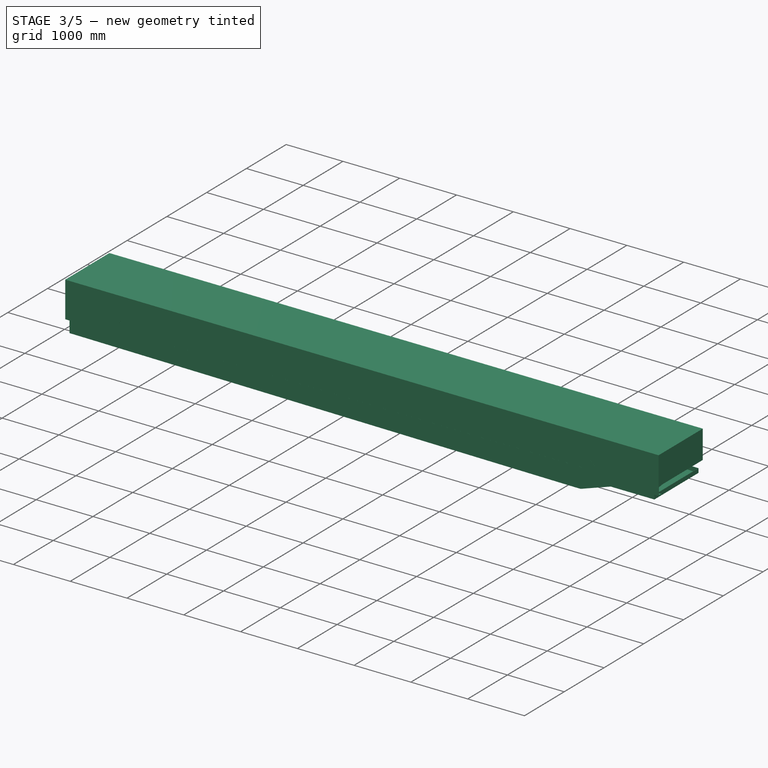
[diagram: stage 3 of 5 — iso view after this stage's code; geometry added in this stage tinted green]
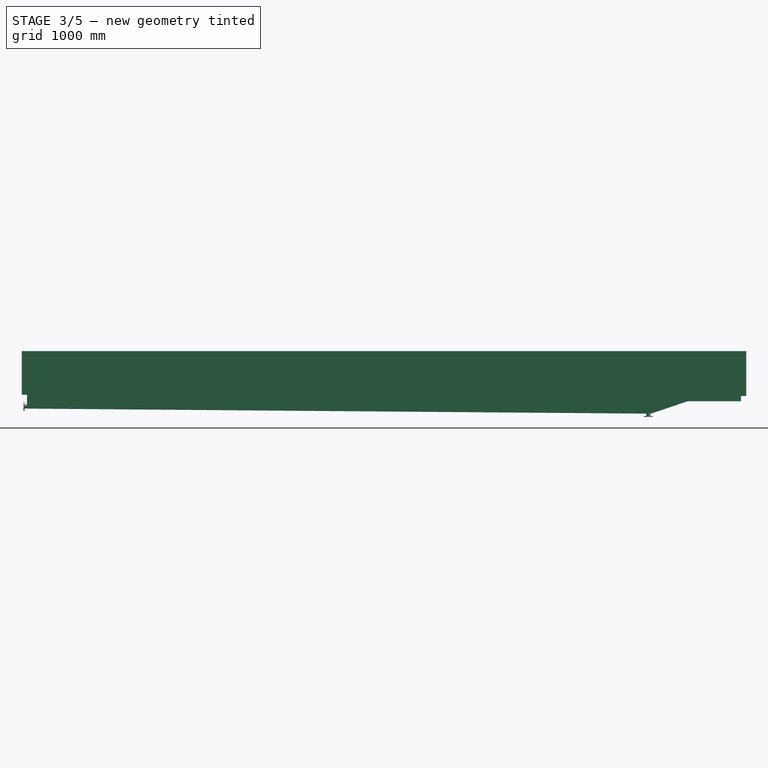
[diagram: stage 3 of 5 — front view after this stage's code; geometry added in this stage tinted green]
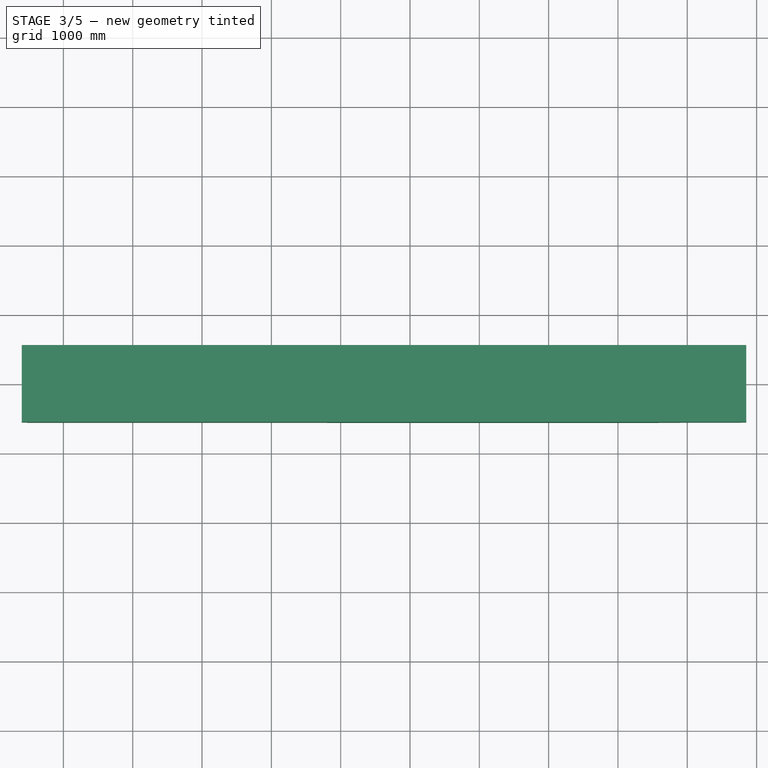
[diagram: stage 3 of 5 — top view after this stage's code; geometry added in this stage tinted green]
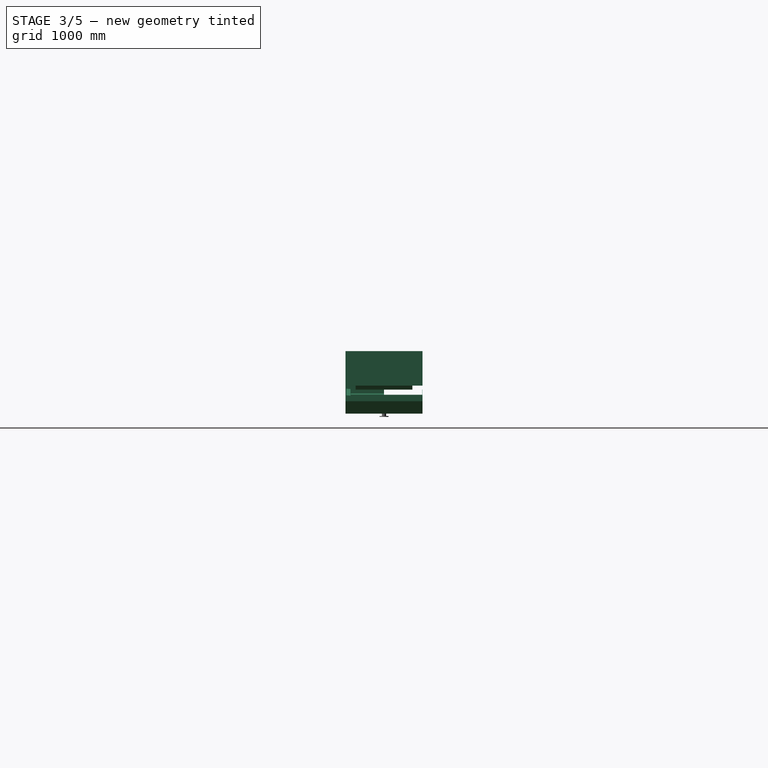
[diagram: stage 3 of 5 — right view after this stage's code; geometry added in this stage tinted green]
FEATURE [Part::Feature] Part__Feature003  label="UCP208FC"
  Placement = pos=(8500,-512,-250.18) rot=(0,0.707107,-0.707107;3.14159rad)
  shape: bbox 184 x 86 x 106.1 mm, 117 faces (baked)
  expr: .Placement.Base.x = Spreadsheet.C0 - 500
FEATURE [Sketcher::SketchObject] Sketch010
  ArcFitTolerance = 0
  FullyConstrained = true
  MakeInternals = false
  MapMode = 5
  Placement = pos=(-105.6,-410.5,-87) rot=(1,0,0;3.14159rad)
FEATURE [Sketcher::SketchObject] Sketch011
  ArcFitTolerance = 0
  FullyConstrained = true
  MakeInternals = false
  MapMode = 5
  Placement = pos=(0,0,0) rot=(1,0,0;1.5708rad)
  expr: Constraints[14] = Spreadsheet.C0
  sketch-geometry (6):
    g0: LineSegment StartX=-600 StartY=-102 StartZ=0 EndX=300 EndY=-102 EndZ=0
    g1: LineSegment StartX=300 StartY=-102 StartZ=0 EndX=377 EndY=-25 EndZ=0
    g2: LineSegment StartX=377 StartY=-25 StartZ=0 EndX=8654 EndY=-25 EndZ=0
    g3: LineSegment StartX=8654 StartY=-25 StartZ=0 EndX=8750 EndY=-121 EndZ=0
    g4: LineSegment StartX=8750 StartY=-121 StartZ=0 EndX=9850 EndY=-121 EndZ=0
    g5: LineSegment [constr] StartX=0 StartY=0 StartZ=0 EndX=9000 EndY=0 EndZ=0
  constraints (19):
    c: Horizontal(g0)
    c: Coincident(g0,g1)
    c: Coincident(g1,g2)
    c: Horizontal(g2)
    c: Coincident(g2,g3)
    c: Coincident(g3,g4)
    c: Horizontal(g4)
    c: DistanceX(g0,g-1) = 600
    c: DistanceX(g-1,g0) = 300
    c: Angle(g1,g0) = 2.35619
    c: Angle(g4,g3) = 2.35619
    c: PointOnObject(g5,g-1)
    c: Coincident(g5,g-1)
    c: Distance(g5,g4) = 121
    c: DistanceX(g5,g5) = 9000
    c: DistanceX(g5,g4) = 850
    c: DistanceX(g3,g5) = 250
    c: DistanceY(g-1,g0) = -102
    c: DistanceY(g0,g1) = 77
FEATURE [Part::Sweep] Sweep001
  Frenet = false
  Placement = pos=(0,-555,0) rot=(0,0,1;0rad)
  Sections = -> [ChannelSteel001]
  Solid = true
  Spine = -> Sketch011 [Edge1,Edge2,Edge3,Edge4,Edge5]
  Transition = 1
  expr: .Placement.Base.y = -Spreadsheet.W0 / 2
FEATURE [Part::FeaturePython] ChannelSteel  # WARN: FeaturePython — macro-defined, semantics opaque (R4)
  B = 75
  H = 150
  L = 1000
  Placement = pos=(-600,0,-253) rot=(0,0,1;0rad)
  Solid = false
  g0 = 7.85
  mass = 0
  size = 3
  standard = SS
  t1 = 6.5
  t2 = 10
FEATURE [Part::Extrusion] Extrude006
  Base = -> ChannelSteel
  Dir = (0,1,0)
  DirMode = 2
  FaceMakerClass = Part::FaceMakerBullseye
  FaceMakerMode = 3
  LengthFwd = 555
  LengthRev = 0
  Reversed = true
  Solid = false
  Symmetric = false
  expr: LengthFwd = <<shtBeltCvAssy>>.B12 / 2
FEATURE [Part::Extrusion] Extrude003
  Base = -> Sketch012
  Dir = (0,0,1)
  DirMode = 2
  FaceMakerClass = Part::FaceMakerBullseye
  FaceMakerMode = 3
  LengthFwd = 12
  LengthRev = 0
  Solid = true
  Symmetric = false
FEATURE [App::Part] Part011  label="Skirt"
  Group = -> [Part008,Mirror003]
  Origin = -> Origin015
  Placement = pos=(0,0,-13) rot=(0,0,1;0rad)
  mass = 59.35
FEATURE [Sketcher::SketchObject] Sketch020
  ArcFitTolerance = 0
  FullyConstrained = true
  MakeInternals = false
  Placement = pos=(0,0,0) rot=(1,0,0;1.5708rad)
  expr: Constraints[20] = Spreadsheet.C0 + 850
  sketch-geometry (8):
    g0: LineSegment StartX=-600 StartY=-103 StartZ=0 EndX=-600 EndY=377 EndZ=0
    g1: LineSegment StartX=-600 StartY=377 StartZ=0 EndX=9850 EndY=377 EndZ=0
    g2: LineSegment StartX=9850 StartY=377 StartZ=0 EndX=9850 EndY=-122 EndZ=0
    g3: LineSegment StartX=9850 StartY=-122 StartZ=0 EndX=8750 EndY=-122 EndZ=0
    g4: LineSegment StartX=8750 StartY=-122 StartZ=0 EndX=8654 EndY=-26 EndZ=0
    g5: LineSegment StartX=8654 StartY=-26 StartZ=0 EndX=377 EndY=-26 EndZ=0
    g6: LineSegment StartX=377 StartY=-26 StartZ=0 EndX=300 EndY=-103 EndZ=0
    g7: LineSegment StartX=300 StartY=-103 StartZ=0 EndX=-600 EndY=-103 EndZ=0
  constraints (24):
    c: Vertical(g0)
    c: Coincident(g0,g1)
    c: Horizontal(g1)
    c: Coincident(g1,g2)
    c: Vertical(g2)
    c: Coincident(g2,g3)
    c: Horizontal(g3)
    c: Coincident(g3,g4)
    c: Coincident(g4,g5)
    c: Horizontal(g5)
    c: Coincident(g5,g6)
    c: Coincident(g6,g7)
    c: Coincident(g7,g0)
    c: Horizontal(g7)
    c: Distance(g-1,g0) = 600
    c: DistanceX(g-1,g6) = 300
    c: Angle(g6,g5) = 2.35619
    c: Angle(g3,g4) = 2.35619
    c: DistanceY(g6,g5) = 77
    c: DistanceY(g6,g-1) = 103
    c: DistanceX(g-1,g1) = 9850
    c: DistanceX(g3,g3) = 1100
    c: DistanceY(g3,g4) = 96
    c: DistanceY(g0,g0) = 480
FEATURE [Part::Extrusion] Extrude012
  Base = -> Sketch020
  Dir = (0,-1,2e-16)
  DirMode = 2
  FaceMakerClass = Part::FaceMakerBullseye
  FaceMakerMode = 3
  LengthFwd = 1110
  LengthRev = 0
  Solid = true
  Symmetric = true
FEATURE [Sketcher::SketchObject] Sketch021
  ArcFitTolerance = 0
  FullyConstrained = true
  MakeInternals = false
  MapMode = 5
  Placement = pos=(0,9.26e-14,417) rot=(0,0,1;0rad)
  expr: Constraints[10] = .Constraints.w / 2
  sketch-geometry (4):
    g0: LineSegment StartX=400 StartY=-200 StartZ=0 EndX=800 EndY=-200 EndZ=0
    g1: LineSegment StartX=800 StartY=-200 StartZ=0 EndX=800 EndY=200 EndZ=0
    g2: LineSegment StartX=800 StartY=200 StartZ=0 EndX=400 EndY=200 EndZ=0
    g3: LineSegment StartX=400 StartY=200 StartZ=0 EndX=400 EndY=-200 EndZ=0
  constraints (12):
    c: Coincident(g0,g1)
    c: Coincident(g1,g2)
    c: Coincident(g2,g3)
    c: Coincident(g3,g0)
    c: Horizontal(g0)
    c: Horizontal(g2)
    c: Vertical(g1)
    c: Vertical(g3)
    c: DistanceX(g2,g2) = 400
    c: DistanceY(g3,g3) = 400  'w'
    c: DistanceY(g-1,g2) = 200
    c: DistanceX(g-1,g2) = 400
FEATURE [Sketcher::SketchObject] Sketch023
  ArcFitTolerance = 0
  FullyConstrained = true
  MakeInternals = false
  Placement = pos=(0,0,0) rot=(1,0,0;1.5708rad)
  expr: Constraints[28] = <<shtBeltCvAssy>>.C0 + 775
  sketch-geometry (11):
    g0: LineSegment StartX=-525 StartY=-253 StartZ=0 EndX=362 EndY=-253 EndZ=0
    g1: LineSegment StartX=362 StartY=-253 StartZ=0 EndX=440 EndY=-175 EndZ=0
    g2: LineSegment StartX=440 StartY=-175 StartZ=0 EndX=8590.5 EndY=-175 EndZ=0
    g3: LineSegment StartX=8590.5 StartY=-175 StartZ=0 EndX=8687.5 EndY=-272 EndZ=0
    g4: LineSegment StartX=8687.5 StartY=-272 StartZ=0 EndX=9775 EndY=-272 EndZ=0
    g5: LineSegment StartX=9005 StartY=-347 StartZ=0 EndX=8477 EndY=-525 EndZ=0
    g6: LineSegment StartX=8477 StartY=-525 StartZ=0 EndX=8327 EndY=-525 EndZ=0
    g7: LineSegment StartX=8327 StartY=-525 StartZ=0 EndX=-525 EndY=-453 EndZ=0
    g8: LineSegment StartX=-525 StartY=-453 StartZ=0 EndX=-525 EndY=-253 EndZ=0
    g9: LineSegment StartX=9005 StartY=-347 StartZ=0 EndX=9775 EndY=-347 EndZ=0
    g10: LineSegment StartX=9775 StartY=-347 StartZ=0 EndX=9775 EndY=-272 EndZ=0
  constraints (33):
    c: Horizontal(g0)
    c: Coincident(g0,g1)
    c: Coincident(g1,g2)
    c: Horizontal(g2)
    c: Coincident(g2,g3)
    c: Coincident(g3,g4)
    c: Horizontal(g4)
    c: Coincident(g5,g6)
    c: Horizontal(g6)
    c: Coincident(g6,g7)
    c: Coincident(g7,g8)
    c: Coincident(g8,g0)
    c: Vertical(g8)
    c: DistanceY(g8,g8) = 200
    c: DistanceY(g0,g-1) = 253
    c: Angle(g1,g0) = 2.35619
    c: Angle(g4,g3) = 2.35619
    c: DistanceY(g5,g3) = 75
    c: DistanceX(g6,g6) = 150
    c: Horizontal(g9)
    c: Coincident(g10,g9)
    c: Coincident(g10,g4)
    c: Vertical(g10)
    c: Coincident(g9,g5)
    c: DistanceX(g-2,g0) = 362
    c: DistanceX(g-2,g7) = -525
    c: DistanceY(g-1,g4) = -272
    c: DistanceX(g9,g9) = 770
    c: DistanceX(g-2,g9) = 9775
    c: DistanceY(g-1,g2) = -175
    c: DistanceX(g4,g4) = 1087.5
    c: DistanceX(g5,g5) = 528
    c: Distance(g6,g2) = 350
FEATURE [Part::Extrusion] Extrude015
  Base = -> Sketch023
  Dir = (0,-1,2e-16)
  DirMode = 2
  FaceMakerClass = Part::FaceMakerBullseye
  FaceMakerMode = 3
  LengthFwd = 1110
  LengthRev = 0
  Solid = true
  Symmetric = true
FEATURE [App::Part] Part019  label="Post"
  Group = -> [Part018,Mirror004]
  Origin = -> Origin022
  mass = 85.6
FEATURE [Part::FeaturePython] Take_upPulley  # WARN: FeaturePython — macro-defined, semantics opaque (R4)
  A = 50
  B = 80
  C = 870
  D = 380
  E = 0
  L = 820
  Placement = pos=(0,0,10) rot=(0,0,1;1.5708rad)
  d1 = 50
  d2 = 45
  d3 = 0
  t1 = 9
  t2 = 9
  t3 = 8
  t4 = 8
FEATURE [Part::Feature] Part__Feature004  label="UCTL209-300-Frame"
  Placement = pos=(0,100,0) rot=(0,0,1;0rad)
  shape: bbox 680 x 192 x 56.51 mm, 312 faces (baked)
FEATURE [Part::Feature] Part__Feature005  label="UCT209CD-Housing2"
  Placement = pos=(160,100,0) rot=(0,0,1;0rad)
  shape: bbox 145.2 x 166 x 69 mm, 135 faces (baked)
FEATURE [Part::Feature] Part__Feature006  label="UCT209-Nipple"
  Placement = pos=(104.942,114.753,0) rot=(0.519988,-0.677661,0.519988;1.95044rad)
  shape: bbox 18.53 x 11.46 x 15.72 mm, 44 faces (baked)
FEATURE [Part::MultiFuse] Fusion014
  Shapes = -> [Part__Feature005,Part__Feature006]
FEATURE [App::Part] UCTL209JCD_300_0  label="UCTL209JCD-300-0"
  Group = -> [Part__Feature004,Part__Feature005,Part__Feature006,Fusion014]
  Origin = -> Origin025
  Placement = pos=(-160,-509.75,-90) rot=(1,0,0;1.5708rad)
FEATURE [Part::Mirroring] Mirror005  label="UCTL209JCD-300-0 (mirrored)"
  Base = (-800,0,0)
  Normal = (0,-1,0)
  Source = -> UCTL209JCD_300_0
FEATURE [App::Part] Part012  label="Frame"
  Group = -> [Part,Sketch007,Sketch010,Mirror]
  Origin = -> Origin016
  mass = 209.58
FEATURE [App::Part] Part020  label="takeUpAssy"
  Group = -> [UCTL209JCD_300_0,Mirror005,Take_upPulley]
  Origin = -> Origin026
  mass = 108.33
FEATURE [App::Part] Part010  label="Pulleys"
  Group = -> [Array001,Array,Part005,CPM5_4175,Carrier_750,Self_Aligning_Carrier_750,Self_Aligning_Return_750,Part020]
  Origin = -> Origin014
FEATURE [Sketcher::SketchObject] Sketch034
  ArcFitTolerance = 1e-06
  FullyConstrained = true
  MakeInternals = false
  Placement = pos=(0,0,0) rot=(1,0,0;1.5708rad)
  expr: Constraints[10] = <<shtBeltCvAssy>>.C0 + 847
  sketch-geometry (4):
    g0: LineSegment StartX=-597 StartY=-206 StartZ=0 EndX=9847 EndY=-206 EndZ=0
    g1: LineSegment StartX=9847 StartY=-206 StartZ=0 EndX=9847 EndY=374 EndZ=0
    g2: LineSegment StartX=9847 StartY=374 StartZ=0 EndX=-597 EndY=374 EndZ=0
    g3: LineSegment StartX=-597 StartY=374 StartZ=0 EndX=-597 EndY=-206 EndZ=0
  constraints (12):
    c: Coincident(g0,g1)
    c: Coincident(g1,g2)
    c: Coincident(g2,g3)
    c: Coincident(g3,g0)
    c: Horizontal(g0)
    c: Horizontal(g2)
    c: Vertical(g1)
    c: Vertical(g3)
    c: DistanceX(g0,g-1) = 597
    c: DistanceY(g-1,g2) = 374
    c: DistanceX(g-1,g1) = 9847
    c: DistanceY(g3,g3) = 580
FEATURE [Part::Extrusion] Extrude033
  Base = -> Sketch034
  Dir = (0,-1,2e-16)
  DirMode = 2
  FaceMakerClass = Part::FaceMakerBullseye
  FaceMakerMode = 3
  LengthFwd = 1104
  LengthRev = 0
  Solid = true
  Symmetric = true
FEATURE [Part::Cut] Cut
  Base = -> Extrude012
  Refine = true
  Tool = -> Extrude033
FEATURE [Sketcher::SketchObject] Sketch035
  ArcFitTolerance = 1e-06
  FullyConstrained = true
  MakeInternals = false
  Placement = pos=(0,0,0) rot=(1,0,0;1.5708rad)
  expr: Constraints[14] = <<shtBeltCvAssy>>.C0 + 1294
  sketch-geometry (6):
    g0: LineSegment StartX=-522 StartY=-60 StartZ=0 EndX=-522 EndY=-450 EndZ=0
    g1: LineSegment StartX=-522 StartY=-450 StartZ=0 EndX=8477 EndY=-521.999 EndZ=0
    g2: LineSegment StartX=8477 StartY=-521.999 StartZ=0 EndX=9005 EndY=-344 EndZ=0
    g3: LineSegment StartX=9005 StartY=-344 StartZ=0 EndX=9772 EndY=-344 EndZ=0
    g4: LineSegment StartX=9772 StartY=-344 StartZ=0 EndX=9772 EndY=-60 EndZ=0
    g5: LineSegment StartX=9772 StartY=-60 StartZ=0 EndX=-522 EndY=-60 EndZ=0
  constraints (18):
    c: Coincident(g0,g1)
    c: Coincident(g1,g2)
    c: Coincident(g2,g3)
    c: Horizontal(g3)
    c: Coincident(g3,g4)
    c: Vertical(g4)
    c: Coincident(g4,g5)
    c: Coincident(g5,g0)
    c: Horizontal(g5)
    c: Vertical(g0)
    c: DistanceX(g0,g-1) = 522
    c: DistanceY(g0,g0) = 390
    c: DistanceY(g0,g-1) = 450
    c: DistanceY(g3,g-1) = 344
    c: DistanceX(g5,g5) = 10294
    c: DistanceX(g3,g3) = 767
    c: Angle(g3,g2) = 0.325155
    c: DistanceX(g2,g2) = 528
FEATURE [Part::Extrusion] Extrude034
  Base = -> Sketch035
  Dir = (0,-1,2e-16)
  DirMode = 2
  FaceMakerClass = Part::FaceMakerBullseye
  FaceMakerMode = 3
  LengthFwd = 1104
  LengthRev = 0
  Solid = true
  Symmetric = true
FEATURE [Part::Cut] Cut003
  Base = -> Extrude015
  Refine = true
  Tool = -> Extrude034
FEATURE [PartDesign::Body] Body001
  AllowCompound = false
  Group = -> [Sketch004,Pad002,Sketch006,Pocket002,Sketch039,Pocket003,LinearPattern001,Mirrored001]
  Origin = -> Origin002
  Placement = pos=(0,0,-20) rot=(0,0,1;0rad)
  Tip = -> Mirrored001
FEATURE [App::Part] Part001  label="rubberSheet"
  Group = -> [Body001]
  Origin = -> Origin003
FEATURE [Sketcher::SketchObject] Sketch040
  ArcFitTolerance = 1e-06
  AttachmentSupport = -> [XZ_Plane028]
  FullyConstrained = true
  MakeInternals = false
  MapMode = 5
  Placement = pos=(0,0,0) rot=(1,0,0;1.5708rad)
  sketch-geometry (6):
    g0: LineSegment StartX=-4.29e-14 StartY=25 StartZ=0 EndX=215 EndY=25 EndZ=0
    g1: ArcOfCircle CenterX=215 CenterY=0 CenterZ=0 NormalX=0 NormalY=0 NormalZ=1 AngleXU=0 Radius=25 StartAngle=4.71239 EndAngle=7.85398
    g2: LineSegment StartX=215 StartY=-25 StartZ=0 EndX=2.84e-14 EndY=-25 EndZ=0
    g3: ArcOfCircle CenterX=0 CenterY=0 CenterZ=0 NormalX=0 NormalY=0 NormalZ=1 AngleXU=0 Radius=25 StartAngle=1.5708 EndAngle=4.71239
    g4: Circle CenterX=0 CenterY=0 CenterZ=0 NormalX=0 NormalY=0 NormalZ=1 AngleXU=0 Radius=7
    g5: Circle CenterX=215 CenterY=0 CenterZ=0 NormalX=0 NormalY=0 NormalZ=1 AngleXU=0 Radius=7
  constraints (13):
    c: PointOnObject(g0,g-2)
    c: Tangent(g0,g1) = 1.5708
    c: PointOnObject(g2,g-2)
    c: Tangent(g2,g3) = 1.5708
    c: Tangent(g1,g2) = 1.5708
    c: Tangent(g3,g0) = 1.5708
    c: Coincident(g3,g-1)
    c: DistanceX(g0,g0) = 215
    c: Distance(g0,g2) = 50
    c: Coincident(g4,g3)
    c: Coincident(g5,g1)
    c: Diameter(g4) = 14
    c: Diameter(g5) = 14
FEATURE [PartDesign::Pad] Pad004
  Direction = (0,-1,2e-16)
  Length = 6
  Length2 = 10
  Placement = pos=(0,0,0) rot=(1,0,0;1.5708rad)
  Profile = -> Sketch040
  ReferenceAxis = -> Sketch040 [N_Axis]
  Refine = true
  Suppressed = false
  Type = 0
FEATURE [PartDesign::Body] Body003
  AllowCompound = false
  Group = -> [Sketch040,Pad004]
  Origin = -> Origin028
  Placement = pos=(0,-114.25,0) rot=(0,0,1;0rad)
  Tip = -> Pad004
FEATURE [Part::Mirroring] Mirror001  label="Body003 (mirrored)"
  Base = (-500,0,0)
  Normal = (0,-1,0)
  Source = -> Body003
FEATURE [Part::MultiFuse] Fusion015  label="linkPlate"
  Refine = true
  Shapes = -> [Mirror001,Body003]
FEATURE [PartDesign::Body] Body004
  AllowCompound = false
  Group = -> [Sketch041,Pad005]
  Origin = -> Origin029
  Placement = pos=(0,7,0) rot=(0,0,1;0rad)
  Tip = -> Pad005
FEATURE [Part::FeaturePython] Clone  label="Body005"  # Draft clone (typed FeaturePython)
  AttacherType = Attacher::AttachEngine3D
  Fuse = false
  Objects = -> [Body004]
  Placement = pos=(0,-7,0) rot=(0,0,1;0rad)
  Scale = (1,1,1)
FEATURE [Part::Compound] Compound
  Links = -> [Body004,Clone]
  Placement = pos=(0,117.5,0) rot=(0,0,1;0rad)
FEATURE [Part::FeaturePython] Clone001  label="Compound001"  # Draft clone (typed FeaturePython)
  AttacherType = Attacher::AttachEngine3D
  Fuse = false
  Objects = -> [Compound]
  Placement = pos=(0,-117.5,0) rot=(0,0,1;0rad)
  Scale = (1,1,1)
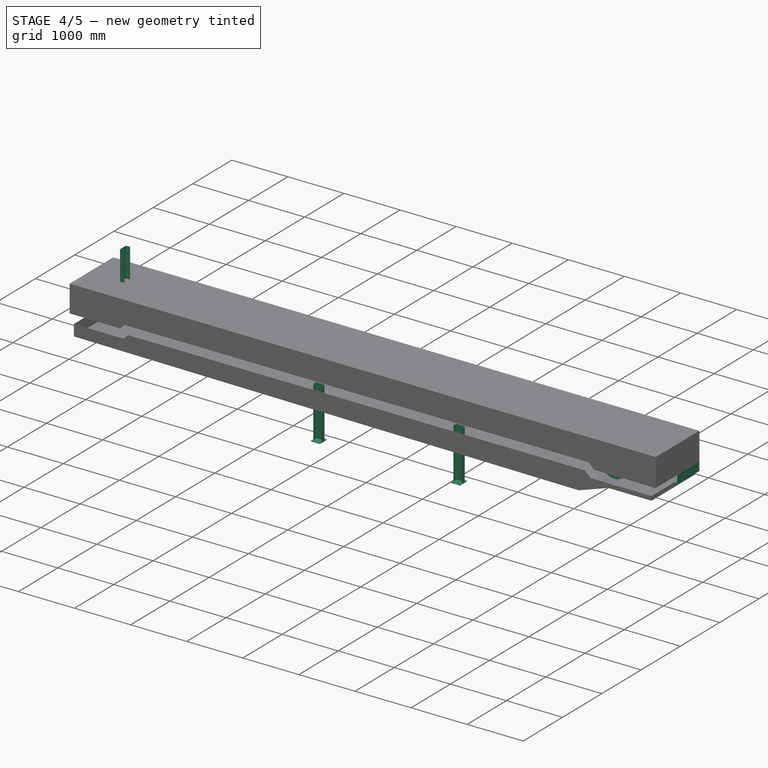
[diagram: stage 4 of 5 — iso view after this stage's code; geometry added in this stage tinted green]
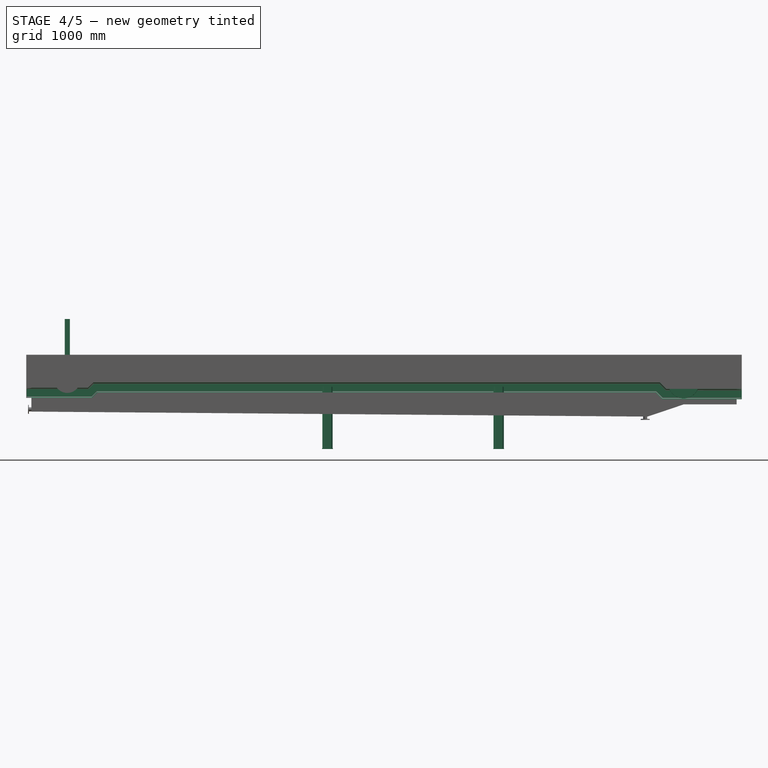
[diagram: stage 4 of 5 — front view after this stage's code; geometry added in this stage tinted green]
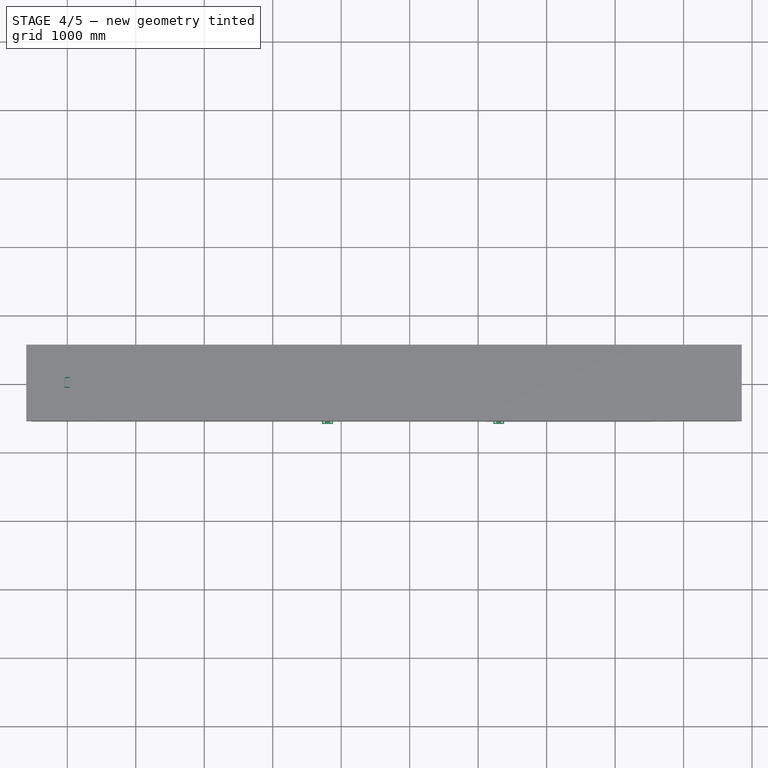
[diagram: stage 4 of 5 — top view after this stage's code; geometry added in this stage tinted green]
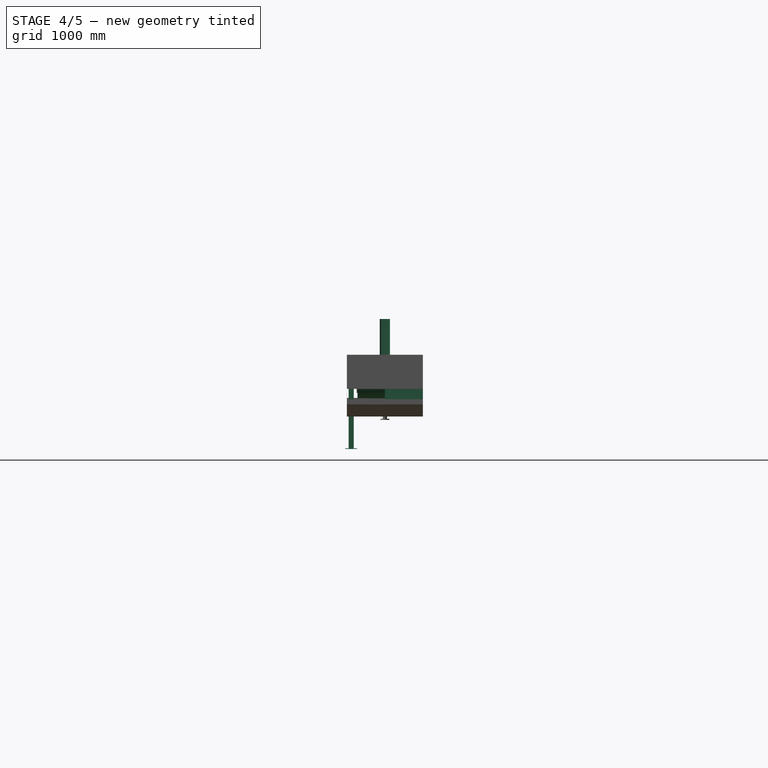
[diagram: stage 4 of 5 — right view after this stage's code; geometry added in this stage tinted green]
FEATURE [Sketcher::SketchObject] Sketch012
  ArcFitTolerance = 0
  AttachmentSupport = -> [Sweep001]
  FullyConstrained = true
  MakeInternals = false
  MapMode = 5
  Placement = pos=(0,-555,-103) rot=(0,0,1;0rad)
  sketch-geometry (4):
    g0: LineSegment StartX=-505 StartY=8 StartZ=0 EndX=185 EndY=8 EndZ=0
    g1: LineSegment StartX=185 StartY=8 StartZ=0 EndX=185 EndY=83 EndZ=0
    g2: LineSegment StartX=185 StartY=83 StartZ=0 EndX=-505 EndY=83 EndZ=0
    g3: LineSegment StartX=-505 StartY=83 StartZ=0 EndX=-505 EndY=8 EndZ=0
  constraints (12):
    c: Coincident(g0,g1)
    c: Coincident(g1,g2)
    c: Coincident(g2,g3)
    c: Coincident(g3,g0)
    c: Horizontal(g0)
    c: Horizontal(g2)
    c: Vertical(g1)
    c: Vertical(g3)
    c: DistanceY(g1,g1) = 75
    c: DistanceY(g-1,g0) = 8
    c: DistanceX(g-1,g0) = 185
    c: DistanceX(g0,g0) = 690
FEATURE [Sketcher::SketchObject] Sketch013
  ArcFitTolerance = 0
  AttachmentSupport = -> [Sweep001]
  FullyConstrained = false
  MakeInternals = false
  MapMode = 5
  Placement = pos=(0,-555,-122) rot=(0,0,1;0rad)
  expr: Constraints[8] = <<shtBeltCvAssy>>.C0
  sketch-geometry (5):
    g0: LineSegment StartX=8875 StartY=10 StartZ=0 EndX=9125 EndY=10 EndZ=0
    g1: LineSegment StartX=9125 StartY=10 StartZ=0 EndX=9125 EndY=120 EndZ=0
    g2: LineSegment StartX=9125 StartY=120 StartZ=0 EndX=8875 EndY=120 EndZ=0
    g3: LineSegment StartX=8875 StartY=120 StartZ=0 EndX=8875 EndY=10 EndZ=0
    g4: LineSegment [constr] StartX=9000 StartY=176.506 StartZ=0 EndX=9000 EndY=-235.911 EndZ=0
  constraints (13):
    c: Coincident(g0,g1)
    c: Coincident(g1,g2)
    c: Coincident(g2,g3)
    c: Coincident(g3,g0)
    c: Horizontal(g0)
    c: Horizontal(g2)
    c: Vertical(g1)
    c: Vertical(g3)
    c: DistanceX(g-2,g4) = 9000
    c: Symmetric(g0,g0,g4)
    c: DistanceY(g-1,g0) = 10
    c: DistanceY(g1,g1) = 110
    c: DistanceX(g0,g0) = 250
FEATURE [Part::Extrusion] Extrude004
  Base = -> Sketch013
  Dir = (0,0,1)
  DirMode = 2
  FaceMakerClass = Part::FaceMakerBullseye
  FaceMakerMode = 3
  LengthFwd = 12
  LengthRev = 0
  Solid = true
  Symmetric = false
FEATURE [Sketcher::SketchObject] Sketch014
  ArcFitTolerance = 0
  AttachmentSupport = -> [Sweep001]
  FullyConstrained = false
  MakeInternals = false
  MapMode = 5
  Placement = pos=(0,-555,-176) rot=(1,0,0;3.14159rad)
  expr: Constraints[13] = <<shtBeltCvAssy>>.C0 - 500
  sketch-geometry (5):
    g0: LineSegment StartX=8400 StartY=-9 StartZ=0 EndX=8600 EndY=-9 EndZ=0
    g1: LineSegment StartX=8600 StartY=-9 StartZ=0 EndX=8600 EndY=-79 EndZ=0
    g2: LineSegment StartX=8600 StartY=-79 StartZ=0 EndX=8400 EndY=-79 EndZ=0
    g3: LineSegment StartX=8400 StartY=-79 StartZ=0 EndX=8400 EndY=-9 EndZ=0
    g4: LineSegment [constr] StartX=8500 StartY=33.7597 StartZ=0 EndX=8500 EndY=-194.785 EndZ=0
  constraints (14):
    c: Coincident(g0,g1)
    c: Coincident(g1,g2)
    c: Coincident(g2,g3)
    c: Coincident(g3,g0)
    c: Horizontal(g0)
    c: Horizontal(g2)
    c: Vertical(g1)
    c: Vertical(g3)
    c: Vertical(g4)
    c: DistanceX(g0,g0) = 200
    c: DistanceY(g3,g3) = 70
    c: DistanceX(g4,g0) = 100
    c: DistanceY(g-1,g0) = -9
    c: DistanceX(g-1,g4) = 8500
FEATURE [Part::Extrusion] Extrude005
  Base = -> Sketch014
  Dir = (0,0,-1)
  DirMode = 2
  FaceMakerClass = Part::FaceMakerBullseye
  FaceMakerMode = 3
  LengthFwd = 63
  LengthRev = 0
  Solid = true
  Symmetric = false
FEATURE [Part::FeaturePython] ChannelSteel002  # WARN: FeaturePython — macro-defined, semantics opaque (R4)
  B = 75
  H = 150
  L = 1000
  Placement = pos=(9850,0,-122) rot=(0,1,0;3.14159rad)
  Solid = false
  g0 = 7.85
  mass = 0
  size = 3
  standard = SS
  t1 = 6.5
  t2 = 10
  expr: .Placement.Base.x = Spreadsheet.C0 + 850
FEATURE [Part::Extrusion] Extrude007
  Base = -> ChannelSteel002
  Dir = (0,1,0)
  DirMode = 2
  FaceMakerClass = Part::FaceMakerBullseye
  FaceMakerMode = 3
  LengthFwd = 555
  LengthRev = 0
  Reversed = true
  Solid = false
  Symmetric = false
  expr: LengthFwd = Spreadsheet.W0 / 2
FEATURE [Part::MultiFuse] Fusion
  Refine = true
  Shapes = -> [Sweep001,Extrude006]
FEATURE [Part::MultiFuse] Fusion001
  Shapes = -> [Fusion,Extrude003]
FEATURE [Part::MultiFuse] Fusion002
  Refine = true
  Shapes = -> [Fusion001,Extrude007]
FEATURE [Part::MultiFuse] Fusion003
  Shapes = -> [Fusion002,Extrude004]
FEATURE [Part::MultiFuse] Fusion004
  Refine = true
  Shapes = -> [Fusion003,Extrude005]
FEATURE [Part::FeaturePython] BasePlate002  # WARN: FeaturePython — macro-defined, semantics opaque (R4)
  B = 175
  D = 19
  H = 160
  b1 = 25
  h1 = 30
  sface = 0
FEATURE [Part::FeaturePython] Channel002  # WARN: FeaturePython — macro-defined, semantics opaque (R4)
  B = 75
  H = 150
  L = 900
  Solid = true
  g0 = 7.85
  mass = 15.2144
  size = 3
  standard = SS
  expr: L = str(<<shtBeltCvAssy>>.Ht - 100 + (<<shtBeltCvAssy>>.C0 - 200) * tan(<<shtBeltCvAssy>>.k))
FEATURE [Part::Extrusion] Extrude022
  Base = -> BasePlate002
  Dir = (0,0,1)
  DirMode = 2
  FaceMakerClass = Part::FaceMakerBullseye
  FaceMakerMode = 3
  LengthFwd = 10
  LengthRev = 0
  Solid = true
  Symmetric = false
FEATURE [Part::FeaturePython] BasePlate003  # WARN: FeaturePython — macro-defined, semantics opaque (R4)
  B = 175
  D = 19
  H = 160
  b1 = 25
  h1 = 30
  sface = 0
FEATURE [Part::Extrusion] Extrude023
  Base = -> BasePlate003
  Dir = (0,0,1)
  DirMode = 2
  FaceMakerClass = Part::FaceMakerBullseye
  FaceMakerMode = 3
  LengthFwd = 10
  LengthRev = 0
  Solid = true
  Symmetric = false
FEATURE [Part::FeaturePython] Channel003  # WARN: FeaturePython — macro-defined, semantics opaque (R4)
  B = 75
  H = 150
  L = 1000
  Solid = true
  g0 = 7.85
  mass = 16.9049
  size = 3
  standard = SS
  expr: L = str(<<shtBeltCvAssy>>.Ht + (<<shtBeltCvAssy>>.C0 - (2700 + 500)) * tan(<<shtBeltCvAssy>>.k))
FEATURE [Part::MultiFuse] Fusion013  label="PostC003"
  Placement = pos=(6300,-492.5,-1000) rot=(0,0,-1;1.5708rad)
  Shapes = -> [Extrude023,Channel003]
  expr: .Placement.Base.x = Spreadsheet.C0 - 2700
  expr: .Placement.Base.z = -Spreadsheet.Ht
FEATURE [Part::FeaturePython] Array004  # Draft array (typed FeaturePython)
  Angle = 360
  ArrayType = 0
  Axis = (0,0,1)
  Base = -> Fusion013
  Center = (0,0,0)
  Count = 2
  Fuse = false
  IntervalAxis = (0,0,0)
  IntervalX = (-2500,0,0)
  IntervalY = (0,100,0)
  IntervalZ = (0,0,100)
  NumberCircles = 3
  NumberPolar = 5
  NumberX = 2
  NumberY = 1
  NumberZ = 1
  RadialDistance = 50
  Symmetry = 1
  TangentialDistance = 25
  expr: NumberX = (Spreadsheet.C0 - 3200) / 2500
FEATURE [Sketcher::SketchObject] Sketch026
  ArcFitTolerance = 0
  FullyConstrained = true
  MakeInternals = false
  Placement = pos=(0,0,0) rot=(1,0,0;1.5708rad)
  expr: Constraints[10] = 1000 mm
  expr: Constraints[11] = -90 + 500 * tan(Spreadsheet.k)
  expr: Constraints[8] = 180 - Spreadsheet.k
  expr: Constraints[9] = <<shtBeltCvAssy>>.C0 - 1000
  sketch-geometry (4):
    g0: LineSegment StartX=425 StartY=-90 StartZ=0 EndX=8425 EndY=-90 EndZ=0
    g1: LineSegment StartX=8425 StartY=-90 StartZ=0 EndX=8425 EndY=910 EndZ=0
    g2: LineSegment StartX=8425 StartY=910 StartZ=0 EndX=425 EndY=910 EndZ=0
    g3: LineSegment StartX=425 StartY=910 StartZ=0 EndX=425 EndY=-90 EndZ=0
  constraints (12):
    c: Coincident(g0,g1)
    c: Vertical(g1)
    c: Coincident(g1,g2)
    c: Horizontal(g2)
    c: Coincident(g2,g3)
    c: Coincident(g3,g0)
    c: Vertical(g3)
    c: DistanceX(g-1,g0) = 425
    c: Angle(g0,g-1) = 3.14159
    c: DistanceX(g2,g2) = 8000
    c: DistanceY(g1,g1) = 1000
    c: DistanceY(g-1,g0) = -90
FEATURE [Part::Extrusion] Extrude024
  Base = -> Sketch026
  Dir = (0,-1,2e-16)
  DirMode = 2
  FaceMakerClass = Part::FaceMakerBullseye
  FaceMakerMode = 3
  LengthFwd = 600
  LengthRev = 0
  Solid = true
  Symmetric = false
FEATURE [Part::Cut] Cut002
  Base = -> Array004
  Tool = -> Extrude024
FEATURE [Part::FeaturePython] CPM5_4175  # WARN: FeaturePython — macro-defined, semantics opaque (R4)
  A = 800
  B1 = 600
  B2 = 750
  C = 80
  D = 460
  D1 = 456
  D2 = 0
  D3 = 0
  E = 200
  F = 60
  G1 = 20
  G2 = 20
  H = 80
  L = 1030
  M = 240
  N1 = 100
  N2 = 100
  P = 35
  Placement = pos=(9000,0,-30) rot=(0,0,-1;1.5708rad)
  R = 25
  a = 0
  b = 0
  d = 18
  key = 12
  mass = 1076.51
  expr: .Placement.Base.x = Spreadsheet.C0
FEATURE [Part::Feature] Self_Aligning_Return_750
  Placement = pos=(1000,0,-253) rot=(0,0,1;1.5708rad)
  mass = 114.73
  shape: bbox 278 x 1090 x 320 mm, 133 faces, 4 solids (baked)
FEATURE [Sketcher::SketchObject] Sketch033
  ArcFitTolerance = 1e-06
  FullyConstrained = true
  MakeInternals = false
  Placement = pos=(0,0,0) rot=(1,0,0;1.5708rad)
  sketch-geometry (4):
    g0: LineSegment StartX=200 StartY=375 StartZ=0 EndX=700 EndY=375 EndZ=0
    g1: LineSegment StartX=700 StartY=375 StartZ=0 EndX=700 EndY=425 EndZ=0
    g2: LineSegment StartX=700 StartY=425 StartZ=0 EndX=200 EndY=425 EndZ=0
    g3: LineSegment StartX=200 StartY=425 StartZ=0 EndX=200 EndY=375 EndZ=0
  constraints (12):
    c: Coincident(g0,g1)
    c: Coincident(g1,g2)
    c: Coincident(g2,g3)
    c: Coincident(g3,g0)
    c: Horizontal(g0)
    c: Horizontal(g2)
    c: Vertical(g1)
    c: Vertical(g3)
    c: DistanceX(g2,g2) = 500
    c: DistanceX(g-1,g2) = 200
    c: DistanceY(g3,g3) = 50
    c: DistanceY(g-1,g0) = 375
FEATURE [Part::Mirroring] Mirror  label="本体 (mirrored)"
  Base = (0,0,0)
  Normal = (0,1,0)
  Source = -> Part
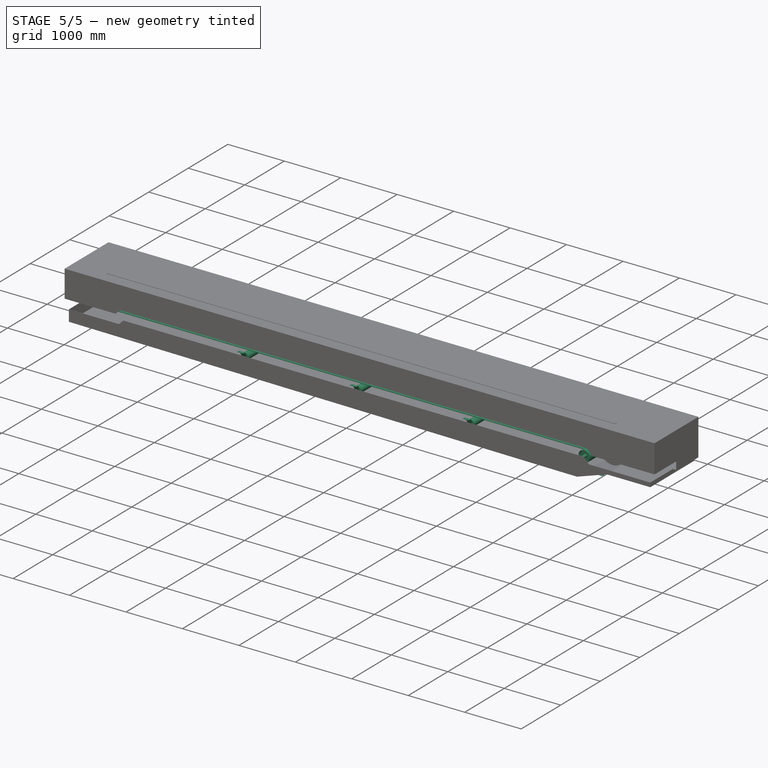
[diagram: stage 5 of 5 — iso view after this stage's code; geometry added in this stage tinted green]
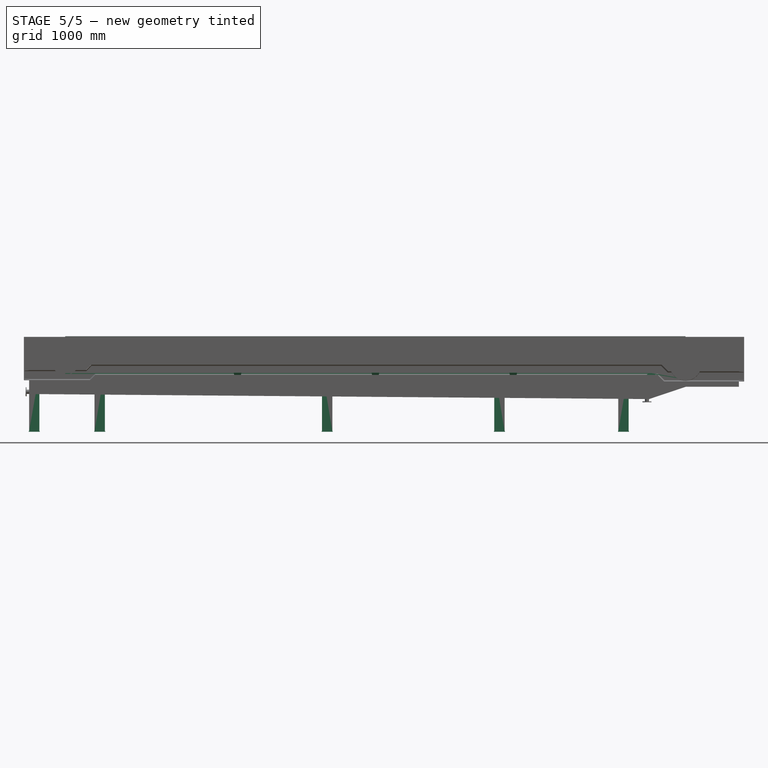
[diagram: stage 5 of 5 — front view after this stage's code; geometry added in this stage tinted green]
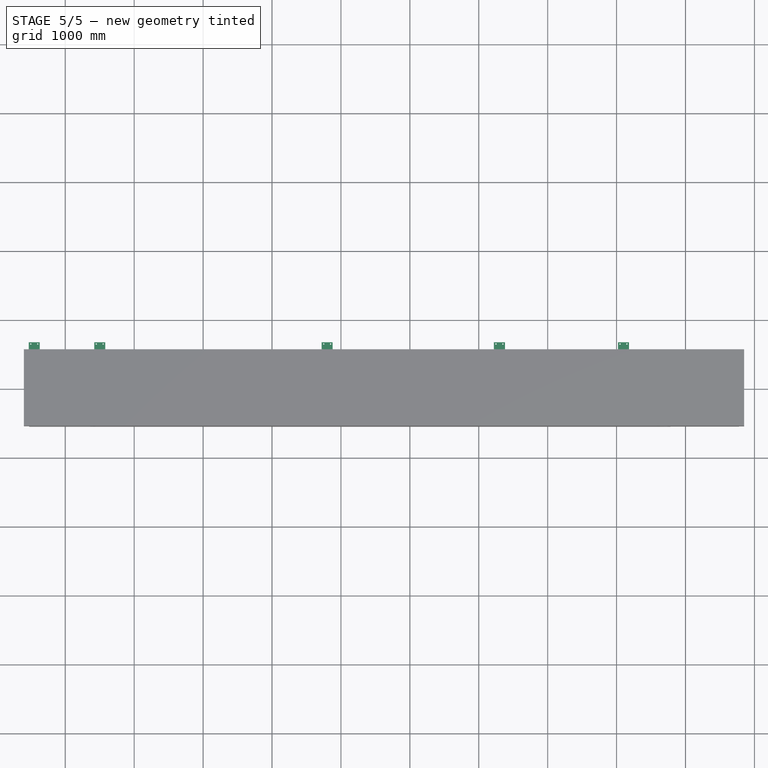
[diagram: stage 5 of 5 — top view after this stage's code; geometry added in this stage tinted green]
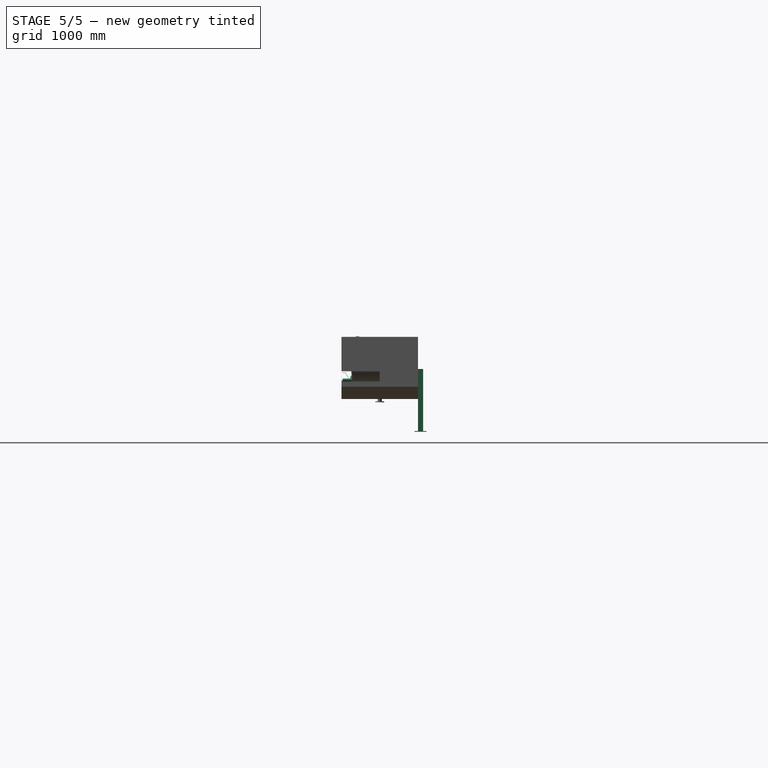
[diagram: stage 5 of 5 — right view after this stage's code; geometry added in this stage tinted green]
FEATURE [Spreadsheet::Sheet] Spreadsheet  label="shtBeltCvAssy"
  cells = C1='tailPulleyHIght Ht; D1='Inclination k(degree); E1='Array_n; F1='BeltWidth B0; G1='h1; H1='h2; I1='post_x; J1='pst_c; A2='CenterDistance C0; B2(C0)=9000; C2(Ht)=1000; D2(k)=0; E2(n0)==C0 / 2500; F2=750; G2(h1)=50; H2(h2)=73; I2(post_x)=1925; J2(post_c)=3; A3='BeltWidth B0; B3(B0)=750; C3=400; D3=450; E3=500; F3=600; G3=700; H3=750; I3=800; J3=900; K3=1000; A4='Belt b1; B4(b1)=265; C4=145; D4=165; E4=180; F4=210; G4=250; H4=265; I4=280; J4=315; K4=345; A5='Belt b2; B5(b2)=242.5; C5==(C3 - C4) / 2; D5==(D3 - D4) / 2; E5==(E3 - E4) / 2; F5==(F3 - F4) / 2; G5==(G3 - G4) / 2; H5==(H3 - H4) / 2; I5==(I3 - I4) / 2; J5==(J3 - J4) / 2; K5==(K3 - K4) / 2; A6='BeltThickness t0; B6(t0)=10; C6=10; D6=10; E6=10; F6=10; G6=10; H6=10; I6=10; J6=10; K6=10; A7='HeadPullyDia D0; B7(D0)=460; C7=300; D7=300; E7=360; F7=360; G7=360; H7=460; I7=460; J7=520; K7=520; A8='TailPullyDia d1; B8(d1)=380; C8=260; D8=260; E8=300; F8=300; G8=300; H8=390; I8=390; J8=440; K8=440; A9='SnapPullyDia d2; B9(d2)=200; C9=200; D9=200; E9=200; F9=200; G9=200; H9=200; I9=200; J9=200; K9=200; A10='SnapPully Ls; B10(Ls)=500; C10=400; D10=400; E10=400; F10=500; G10=500; H10=500; I10=500; J10=500; K10=500; A11='SnapPully h0; B11(h0)=180; C11=180; D11=180; E11=160; F11=180; G11=180; H11=180; I11=180; J11=180; K11=180; A12='hontaihaba W; B12(W0)=1110; C12=710; D12=760; E12=810; F12=910; G12=910; H12=910; I12=910; J12=910; K12=910; A13='hontai _h; B13=103.5; C13=103.5; D13=103.5; E13=103.5; F13=103.5; G13=103.5; H13=103.5; I13=103.5; J13=103.5; K13=103.5; A14='hontai_z; B14=16; C14=16; D14=16; E14=16; F14=16; G14=16; H14=16; I14=16; J14=16; K14=16; A15='takeup_x; B15=-403.47; C15=-403.47; D15=-403.47; E15=-403.47; F15=-403.47; G15=-403.47; H15=-403.47; I15=-403.47; J15=-403.47; K15=-403.47; A16='takeup_y; B16=-410; C16=-362.8; D16=-362.8; E16=-362.8; F16=-410; G16=-410; H16=-410; I16=-410; J16=-410; K16=-410; A17='takeup_z; B17=-57; C17=-87; D17=-87; E17=-87; F17=-57; G17=-57; H17=-57; I17=-57; J17=-57; K17=-57; A18='carrierPitch  cp; B18=1000; A19='returnPitch rp; B19=1500; A20='outletL; B20(outletL)=50; A21='outletK; B21(outletK)=0; A22='insertX; B22(insertX)=300; A23='insertK; B23(insertK)=0
FEATURE [Sketcher::SketchObject] Sketch007
  ArcFitTolerance = 0
  FullyConstrained = true
  MakeInternals = false
  MapMode = 5
  Placement = pos=(0,0,14) rot=(1,0,0;1.5708rad)
  expr: Constraints[11] = <<shtBeltCvAssy>>.C0 + 1000
  sketch-geometry (5):
    g0: LineSegment StartX=-600 StartY=-99 StartZ=0 EndX=250 EndY=-99 EndZ=0
    g1: LineSegment StartX=250 StartY=-99 StartZ=0 EndX=309 EndY=-40 EndZ=0
    g2: LineSegment StartX=309 StartY=-40 StartZ=0 EndX=8728 EndY=-40 EndZ=0
    g3: LineSegment StartX=8728 StartY=-40 StartZ=0 EndX=8800 EndY=-112 EndZ=0
    g4: LineSegment StartX=8800 StartY=-112 StartZ=0 EndX=10000 EndY=-112 EndZ=0
  constraints (16):
    c: Horizontal(g0)
    c: Coincident(g0,g1)
    c: Coincident(g1,g2)
    c: Horizontal(g2)
    c: Coincident(g2,g3)
    c: Coincident(g3,g4)
    c: Horizontal(g4)
    c: DistanceX(g0,g-1) = 600
    c: Angle(g1,g0) = 2.35619
    c: DistanceX(g-1,g0) = 250
    c: Angle(g4,g3) = 2.35619
    c: DistanceX(g-1,g4) = 10000
    c: DistanceX(g4,g4) = 1200
    c: DistanceY(g0,g-1) = 99
    c: DistanceY(g0,g1) = 59
    c: DistanceY(g-1,g3) = -112
FEATURE [Part::Feature] ChannelSteel001
  Placement = pos=(-600,-2.2e-14,-253) rot=(0,0,1;0rad)
  shape: bbox 2e-07 x 75 x 150 mm, 0 faces, 0 solids (baked)
FEATURE [Part::FeaturePython] BendPulley  label="body001"  # WARN: FeaturePython — macro-defined, semantics opaque (R4)
  A = 50
  B = 103.5
  C = 870
  D = 200
  E = 0
  L = 820
  Placement = pos=(8500,1.79e-13,-250.18) rot=(0,0,-1;1.5708rad)
  d1 = 50
  d2 = 45
  d3 = 0
  t1 = 9
  t2 = 9
  t3 = 8
  t4 = 8
  expr: .Placement.Base.x = Spreadsheet.C0 - 500
FEATURE [Part::Mirroring] Part__Mirroring001  label="UCP208FC (Mirror #3)"
  Base = (0,0,0)
  Normal = (0,1,0)
  Source = -> Part__Feature003
FEATURE [App::Part] Part  label="本体"
  Group = -> [Fusion,ChannelSteel002,ChannelSteel,ChannelSteel001,Sweep001,Sketch011,Sketch012,Extrude005,Extrude006,Extrude003,Extrude007,Extrude004,Sketch013,Sketch014,Fusion002,Fusion003,Fusion001,Fusion004]
  Origin = -> Origin006
FEATURE [App::Part] Part005  label="bendPully"
  Group = -> [BendPulley,Part__Feature003,Part__Mirroring001]
  Origin = -> Origin009
  Placement = pos=(0,0,-39) rot=(0,0,1;0rad)
  mass = 56.6
FEATURE [Sketcher::SketchObject] Sketch016
  ArcFitTolerance = 0
  FullyConstrained = true
  MakeInternals = false
  Placement = pos=(0,0,0) rot=(0.57735,0.57735,0.57735;2.0944rad)
  sketch-geometry (6):
    g0: LineSegment StartX=200 StartY=274 StartZ=0 EndX=206 EndY=274 EndZ=0
    g1: LineSegment StartX=206 StartY=274 StartZ=0 EndX=206 EndY=364 EndZ=0
    g2: LineSegment StartX=200 StartY=370 StartZ=0 EndX=200 EndY=274 EndZ=0
    g3: LineSegment StartX=250 StartY=370 StartZ=0 EndX=250 EndY=364 EndZ=0
    g4: LineSegment StartX=250 StartY=364 StartZ=0 EndX=206 EndY=364 EndZ=0
    g5: LineSegment StartX=200 StartY=370 StartZ=0 EndX=250 EndY=370 EndZ=0
  constraints (18):
    c: Coincident(g0,g1)
    c: Coincident(g2,g0)
    c: Horizontal(g0)
    c: Vertical(g1)
    c: Vertical(g2)
    c: DistanceX(g-2,g2) = 200
    c: Vertical(g3)
    c: Coincident(g3,g4)
    c: Horizontal(g4)
    c: Coincident(g1,g4)
    c: Coincident(g5,g2)
    c: Coincident(g5,g3)
    c: Horizontal(g5)
    c: DistanceY(g3,g3) = 6
    c: DistanceX(g5,g5) = 50
    c: DistanceX(g0,g0) = 6
    c: DistanceY(g2,g2) = 96
    c: DistanceY(g-1,g2) = 370
FEATURE [Part::Extrusion] Extrude010
  Base = -> Sketch016
  Dir = (1,0,0)
  DirMode = 2
  FaceMakerClass = Part::FaceMakerBullseye
  FaceMakerMode = 3
  LengthFwd = 9000
  LengthRev = 0
  Solid = true
  Symmetric = false
  expr: LengthFwd = Spreadsheet.C0
FEATURE [App::Part] Part008  label="skirt"
  Group = -> [Sketch016,Extrude010]
  Origin = -> Origin012
  Placement = pos=(0,98,15) rot=(0,0,1;0rad)
FEATURE [Part::Mirroring] Mirror003  label="skirt001"
  Base = (-900,0,0)
  Normal = (0,-1,0)
  Source = -> Part008
FEATURE [Sketcher::SketchObject] Sketch024
  ArcFitTolerance = 0
  FullyConstrained = false
  MakeInternals = false
  MapMode = 5
  Placement = pos=(0,-1.041e-13,-469) rot=(0,0,1;0rad)
  expr: Constraints[1] = <<shtBeltCvAssy>>.C0 - 750
  sketch-geometry (1):
    g0: Circle CenterX=8250 CenterY=0 CenterZ=0 NormalX=0 NormalY=0 NormalZ=1 AngleXU=0 Radius=30.4407
  constraints (2):
    c: PointOnObject(g0,g-1)
    c: DistanceX(g-1,g0) = 8250
FEATURE [Sketcher::SketchObject] Sketch
  ArcFitTolerance = 0
  FullyConstrained = true
  MakeInternals = false
  Placement = pos=(0,0,0) rot=(0.57735,0.57735,0.57735;2.0944rad)
  expr: Constraints[1] = Spreadsheet.B0
  expr: Constraints[2] = Spreadsheet.D0 / 2
  sketch-geometry (1):
    g0: LineSegment StartX=-375 StartY=230 StartZ=0 EndX=375 EndY=230 EndZ=0
  constraints (3):
    c: Symmetric(g0,g0,g-2)
    c: DistanceX(g0,g0) = 750
    c: Distance(g-1,g0) = 230
FEATURE [Sketcher::SketchObject] Sketch001
  ArcFitTolerance = 0
  FullyConstrained = true
  MakeInternals = false
  Placement = pos=(9000,0,0) rot=(0.57735,0.57735,0.57735;2.0944rad)
  expr: .Placement.Base.x = Spreadsheet.C0
  expr: Constraints[1] = Spreadsheet.B0
  expr: Constraints[2] = Spreadsheet.D0 / 2
  sketch-geometry (1):
    g0: LineSegment StartX=-375 StartY=230 StartZ=0 EndX=375 EndY=230 EndZ=0
  constraints (3):
    c: Symmetric(g0,g0,g-2)
    c: DistanceX(g0,g0) = 750
    c: Distance(g-1,g0) = 230
FEATURE [Sketcher::SketchObject] Sketch002
  ArcFitTolerance = 0
  FullyConstrained = true
  MakeInternals = false
  Placement = pos=(500,0,0) rot=(0.57735,0.57735,0.57735;2.0944rad)
  expr: Constraints[5] = Spreadsheet.b2
  expr: Constraints[6] = Spreadsheet.b2
  expr: Constraints[7] = Spreadsheet.D0 / 2
  expr: Constraints[8] = Spreadsheet.b1
  sketch-geometry (3):
    g0: LineSegment StartX=-360.375 StartY=312.94 StartZ=0 EndX=-132.5 EndY=230 EndZ=0
    g1: LineSegment StartX=-132.5 StartY=230 StartZ=0 EndX=132.5 EndY=230 EndZ=0
    g2: LineSegment StartX=132.5 StartY=230 StartZ=0 EndX=360.375 EndY=312.94 EndZ=0
  constraints (9):
    c: Coincident(g0,g1)
    c: Coincident(g1,g2)
    c: Angle(g2,g1) = 2.79253
    c: Angle(g1,g0) = 2.79253
    c: Symmetric(g1,g0,g-2)
    c: Distance(g2) = 242.5
    c: Distance(g0) = 242.5
    c: DistanceY(g-1,g1) = 230
    c: DistanceX(g1,g1) = 265
FEATURE [Sketcher::SketchObject] Sketch003
  ArcFitTolerance = 0
  FullyConstrained = true
  MakeInternals = false
  Placement = pos=(8500,0,0) rot=(0.57735,0.57735,0.57735;2.0944rad)
  expr: .Placement.Base.x = Spreadsheet.C0 - 500
  expr: Constraints[5] = Spreadsheet.b2
  expr: Constraints[6] = Spreadsheet.b2
  expr: Constraints[7] = Spreadsheet.D0 / 2
  expr: Constraints[8] = Spreadsheet.b1
  sketch-geometry (3):
    g0: LineSegment StartX=-360.375 StartY=312.94 StartZ=0 EndX=-132.5 EndY=230 EndZ=0
    g1: LineSegment StartX=-132.5 StartY=230 StartZ=0 EndX=132.5 EndY=230 EndZ=0
    g2: LineSegment StartX=132.5 StartY=230 StartZ=0 EndX=360.375 EndY=312.94 EndZ=0
  constraints (9):
    c: Coincident(g0,g1)
    c: Coincident(g1,g2)
    c: Angle(g2,g1) = 2.79253
    c: Angle(g1,g0) = 2.79253
    c: Symmetric(g1,g0,g-2)
    c: Distance(g2) = 242.5
    c: Distance(g0) = 242.5
    c: DistanceY(g-1,g1) = 230
    c: DistanceX(g1,g1) = 265
FEATURE [Sketcher::SketchObject] Sketch005
  ArcFitTolerance = 0
  FullyConstrained = true
  MakeInternals = false
  Placement = pos=(9000,0,0) rot=(1,0,0;1.5708rad)
  expr: .Placement.Base.x = Spreadsheet.C0
  expr: Constraints[0] = Spreadsheet.D0
  expr: Constraints[10] = Spreadsheet.Ls
  expr: Constraints[20] = Spreadsheet.t0
  expr: Constraints[22] = Spreadsheet.t0
  expr: Constraints[29] = (Spreadsheet.D0 - Spreadsheet.d1) / 2
  expr: Constraints[2] = Spreadsheet.d1
  expr: Constraints[6] = Spreadsheet.d2 / 2
  expr: Constraints[8] = Spreadsheet.C0
  sketch-geometry (12):
    g0: ArcOfCircle CenterX=0 CenterY=0 CenterZ=0 NormalX=0 NormalY=0 NormalZ=1 AngleXU=0 Radius=230 StartAngle=4.54458 EndAngle=7.85398
    g1: ArcOfCircle CenterX=-9000 CenterY=40 CenterZ=0 NormalX=0 NormalY=0 NormalZ=1 AngleXU=0 Radius=190 StartAngle=1.5708 EndAngle=4.71239
    g2: LineSegment StartX=-38.4153 StartY=-226.769 StartZ=0 EndX=-483.298 EndY=-151.405 EndZ=0
    g3: LineSegment StartX=-500 StartY=-150 StartZ=0 EndX=-9000 EndY=-150 EndZ=0
    g4: ArcOfCircle CenterX=-500 CenterY=-250 CenterZ=0 NormalX=0 NormalY=0 NormalZ=1 AngleXU=0 Radius=100 StartAngle=1.40299 EndAngle=1.5708
    g5: ArcOfCircle CenterX=-9000 CenterY=40 CenterZ=0 NormalX=0 NormalY=0 NormalZ=1 AngleXU=0 Radius=200 StartAngle=1.5708 EndAngle=4.71239
    g6: LineSegment StartX=-9000 StartY=-160 StartZ=0 EndX=-500 EndY=-160 EndZ=0
    g7: ArcOfCircle CenterX=-500 CenterY=-250 CenterZ=0 NormalX=0 NormalY=0 NormalZ=1 AngleXU=0 Radius=90 StartAngle=1.40299 EndAngle=1.5708
    g8: LineSegment StartX=-484.968 StartY=-161.264 StartZ=0 EndX=-40.0857 EndY=-236.629 EndZ=0
    g9: ArcOfCircle CenterX=0 CenterY=0 CenterZ=0 NormalX=0 NormalY=0 NormalZ=1 AngleXU=0 Radius=240 StartAngle=4.54458 EndAngle=7.85398
    g10: LineSegment StartX=0 StartY=230 StartZ=0 EndX=7.35e-14 EndY=240 EndZ=0
    g11: LineSegment StartX=-9000 StartY=230 StartZ=0 EndX=-9000 EndY=240 EndZ=0
  constraints (32):
    c: Diameter(g0) = 460
    c: Coincident(g-1,g0)
    c: Diameter(g1) = 380
    c: Horizontal(g3)
    c: Tangent(g2,g4) = -1.5708
    c: Tangent(g3,g4) = -1.5708
    c: Radius(g4) = 100
    c: Coincident(g1,g3)
    c: DistanceX(g1,g0) = 9000
    c: Vertical(g0,g0)
    c: DistanceX(g4,g0) = 500
    c: Vertical(g1,g1)
    c: Coincident(g5,g1)
    c: Tangent(g5,g6) = -1.5708
    c: Tangent(g6,g7) = 1.5708
    c: Tangent(g8,g9) = -1.5708
    c: PointOnObject(g9,g-2)
    c: Coincident(g10,g0)
    c: Coincident(g10,g9)
    c: Coincident(g9,g0)
    c: DistanceY(g10,g10) = 10
    c: Coincident(g4,g7)
    c: DistanceY(g5,g1) = 10
    c: Vertical(g1,g5)
    c: Coincident(g11,g1)
    c: Coincident(g11,g5)
    c: Tangent(g7,g8) = 1.5708
    c: Vertical(g1,g1)
    c: Parallel(g8,g2)
    c: DistanceY(g-1,g1) = 40
    c: Parallel(g6,g3)
    c: Coincident(g2,g0)
FEATURE [Part::Extrusion] Extrude
  Base = -> Sketch005
  Dir = (0,-1,2e-16)
  DirMode = 2
  FaceMakerClass = Part::FaceMakerBullseye
  FaceMakerMode = 3
  LengthFwd = 750
  LengthRev = 0
  Solid = true
  Symmetric = true
  expr: LengthFwd = <<shtBeltCvAssy>>.B0
FEATURE [Sketcher::SketchObject] Sketch025
  ArcFitTolerance = 0
  FullyConstrained = true
  MakeInternals = false
  Placement = pos=(0,0,0) rot=(1,0,0;1.5708rad)
  sketch-geometry (1):
    g0: LineSegment StartX=0 StartY=180 StartZ=0 EndX=500 EndY=180 EndZ=0
  constraints (4):
    c: Horizontal(g0)
    c: Vertical(g0,g-1)
    c: DistanceY(g-1,g0) = 180
    c: DistanceX(g0,g0) = 500
FEATURE [Sketcher::SketchObject] Sketch008
  ArcFitTolerance = 0
  FullyConstrained = true
  MakeInternals = false
  Placement = pos=(0,0,0) rot=(1,0,0;1.5708rad)
  expr: Constraints[2] = Spreadsheet.C0
  sketch-geometry (1):
    g0: LineSegment StartX=8500 StartY=180 StartZ=0 EndX=9000 EndY=180 EndZ=0
  constraints (4):
    c: Horizontal(g0)
    c: DistanceY(g-1,g0) = 180
    c: DistanceX(g-1,g0) = 9000
    c: DistanceX(g0,g0) = 500
FEATURE [Sketcher::SketchObject] Sketch009
  ArcFitTolerance = 0
  FullyConstrained = true
  MakeInternals = false
  Placement = pos=(0,0,0) rot=(1,0,0;1.5708rad)
  sketch-geometry (1):
    g0: LineSegment StartX=500 StartY=180 StartZ=0 EndX=4500 EndY=180 EndZ=0
  constraints (4):
    c: Horizontal(g0)
    c: DistanceX(g-1,g0) = 500
    c: DistanceY(g-1,g0) = 180
    c: DistanceX(g0,g0) = 4000
FEATURE [Part::Sweep] Sweep003
  Frenet = false
  Sections = -> [Sketch002,Sketch003]
  Solid = false
  Spine = -> Sketch009 [Edge1]
  Transition = 1
FEATURE [Part::Extrusion] Extrude017
  Base = -> Sweep003
  Dir = (0,0,1)
  DirMode = 0
  FaceMakerClass = Part::FaceMakerBullseye
  FaceMakerMode = 3
  LengthFwd = 10
  LengthRev = 0
  Solid = false
  Symmetric = false
FEATURE [Part::Sweep] Sweep
  Frenet = false
  Sections = -> [Sketch,Sketch002]
  Solid = false
  Spine = -> Sketch025 [Edge1]
  Transition = 1
FEATURE [Part::Extrusion] Extrude018
  Base = -> Sweep
  Dir = (0,0,1)
  DirMode = 0
  FaceMakerClass = Part::FaceMakerBullseye
  FaceMakerMode = 3
  LengthFwd = 10
  LengthRev = 0
  Solid = false
  Symmetric = false
FEATURE [Part::Sweep] Sweep004
  Frenet = false
  Sections = -> [Sketch001,Sketch003]
  Solid = false
  Spine = -> Sketch008 [Edge1]
  Transition = 1
FEATURE [Part::Extrusion] Extrude019
  Base = -> Sweep004
  Dir = (0,0,1)
  DirMode = 0
  FaceMakerClass = Part::FaceMakerBullseye
  FaceMakerMode = 3
  LengthFwd = 10
  LengthRev = 0
  Solid = false
  Symmetric = false
FEATURE [App::Part] Part015  label="Belt"
  Group = -> [Sketch005,Extrude,Sketch001,Sketch,Sketch002,Sketch003,Sketch025,Sketch008,Sketch009,Sweep003,Extrude017,Sweep,Extrude018,Sweep004,Extrude019]
  Origin = -> Origin
  Placement = pos=(0,0,-30) rot=(0,0,1;0rad)
  mass = 142.69
FEATURE [Part::FeaturePython] BasePlate  # WARN: FeaturePython — macro-defined, semantics opaque (R4)
  B = 175
  D = 19
  H = 160
  b1 = 25
  h1 = 30
  sface = 0
FEATURE [Part::Extrusion] Extrude020
  Base = -> BasePlate
  Dir = (0,0,1)
  DirMode = 2
  FaceMakerClass = Part::FaceMakerBullseye
  FaceMakerMode = 3
  LengthFwd = 10
  LengthRev = 0
  Solid = true
  Symmetric = false
FEATURE [Part::FeaturePython] Channel  # WARN: FeaturePython — macro-defined, semantics opaque (R4)
  B = 75
  H = 150
  L = 860
  Solid = true
  g0 = 7.85
  mass = 14.5382
  size = 3
  standard = SS
  expr: L = str(<<shtBeltCvAssy>>.Ht - 140 - 450 * tan(<<shtBeltCvAssy>>.k))
FEATURE [Part::MultiFuse] Fusion010  label="PostC"
  Placement = pos=(-450,-492.5,-1000) rot=(0,0,-1;1.5708rad)
  Shapes = -> [Extrude020,Channel]
  expr: .Placement.Base.z = -Spreadsheet.Ht
FEATURE [Part::FeaturePython] BasePlate001  # WARN: FeaturePython — macro-defined, semantics opaque (R4)
  B = 175
  D = 19
  H = 160
  b1 = 25
  h1 = 30
  sface = 0
FEATURE [Part::FeaturePython] Channel001  # WARN: FeaturePython — macro-defined, semantics opaque (R4)
  B = 75
  H = 150
  L = 910
  Solid = true
  g0 = 7.85
  mass = 15.3834
  size = 3
  standard = SS
  expr: L = str(<<shtBeltCvAssy>>.Ht - 90 + 500 * tan(<<shtBeltCvAssy>>.k))
FEATURE [Part::Extrusion] Extrude021
  Base = -> BasePlate001
  Dir = (0,0,1)
  DirMode = 2
  FaceMakerClass = Part::FaceMakerBullseye
  FaceMakerMode = 3
  LengthFwd = 10
  LengthRev = 0
  Solid = true
  Symmetric = false
FEATURE [Part::MultiFuse] Fusion011  label="PostC001"
  Placement = pos=(500,-492.5,-1000) rot=(0,0,-1;1.5708rad)
  Shapes = -> [Extrude021,Channel001]
  expr: .Placement.Base.z = -Spreadsheet.Ht
FEATURE [Part::MultiFuse] Fusion012  label="ヘッド部"
  Placement = pos=(8100,-492.5,-1000) rot=(0,0,-1;1.5708rad)
  Shapes = -> [Extrude022,Channel002]
  expr: .Placement.Base.x = Spreadsheet.C0 - 900
  expr: .Placement.Base.z = -Spreadsheet.Ht
FEATURE [App::Part] Part018  label="post"
  Group = -> [BasePlate,Channel,Extrude020,Fusion010,BasePlate001,Channel001,Extrude021,Fusion011,BasePlate002,Channel002,Extrude022,Fusion012,Fusion013,BasePlate003,Channel003,Sketch026,Extrude023,Extrude024,Array004,Cut002]
  Origin = -> Origin021
  Placement = pos=(0,-100,0) rot=(0,1,0;0rad)
FEATURE [Part::Mirroring] Mirror004  label="post (mirrored)"
  Base = (-3000,0,0)
  Normal = (0,-1,0)
  Source = -> Part018
FEATURE [Part::Feature] Carrier_750
  Placement = pos=(500,-545,0) rot=(0,0,1;1.5708rad)
  mass = 86.2
  shape: bbox 210 x 1090 x 306.6 mm, 116 faces, 3 solids (baked)
FEATURE [Part::FeaturePython] Array  label="carrierArray"  # Draft array (typed FeaturePython)
  AlwaysSyncPlacement = false
  Angle = 360
  ArrayType = 0
  Axis = (0,0,1)
  Base = -> Carrier_750
  Center = (0,0,0)
  Count = 8
  ExpandArray = false
  Fuse = false
  IntervalAxis = (0,0,0)
  IntervalX = (1000,0,0)
  IntervalY = (0,100,0)
  IntervalZ = (0,0,100)
  NumberCircles = 3
  NumberPolar = 5
  NumberX = 8
  NumberY = 1
  NumberZ = 1
  Placement = pos=(0,0,36) rot=(0,0,1;0rad)
  PlacementList = 8 placements: arithmetic series from (500,-545,0) step (1000,0,0) to (7500,-545,0)
  RadialDistance = 50
  ScaleList = (8) [(1,1,1),(1,1,1),(1,1,1),(1,1,1),(1,1,1),(1,1,1),(1,1,1),(1,1,1)]
  Symmetry = 1
  TangentialDistance = 25
  expr: NumberX = Spreadsheet.C0 / Spreadsheet.B18 - 1
FEATURE [Part::Feature] Self_Aligning_Carrier_750
  Placement = pos=(8500,0,-17) rot=(0,0,1;4.71239rad)
  mass = 112.63
  shape: bbox 318 x 1090 x 455 mm, 193 faces, 4 solids (baked)
  expr: .Placement.Base.x = Spreadsheet.C0 - 500
FEATURE [Part::Feature] Return_750
  Placement = pos=(2500,0,0) rot=(0,0,1;1.5708rad)
  mass = 81.77
  shape: bbox 124 x 1090 x 172 mm, 37 faces (baked)
FEATURE [Part::FeaturePython] Array001  label="returnArray"  # Draft array (typed FeaturePython)
  AlwaysSyncPlacement = false
  Angle = 360
  ArrayType = 0
  Axis = (0,0,1)
  Base = -> Return_750
  Center = (0,0,0)
  Count = 3
  ExpandArray = false
  Fuse = false
  IntervalAxis = (0,0,0)
  IntervalX = (2000,0,0)
  IntervalY = (0,100,0)
  IntervalZ = (0,0,100)
  NumberCircles = 3
  NumberPolar = 5
  NumberX = 3
  NumberY = 1
  NumberZ = 1
  Placement = pos=(0,2.551e-05,-252) rot=(0,0,1;0rad)
  PlacementList = 3 placements: arithmetic series from (2500,0,0) step (2000,0,0) to (6500,0,0)
  RadialDistance = 50
  ScaleList = (3) [(1,1,1),(1,1,1),(1,1,1)]
  Symmetry = 1
  TangentialDistance = 25
  expr: NumberX = (Spreadsheet.C0 - 3000) / 2000
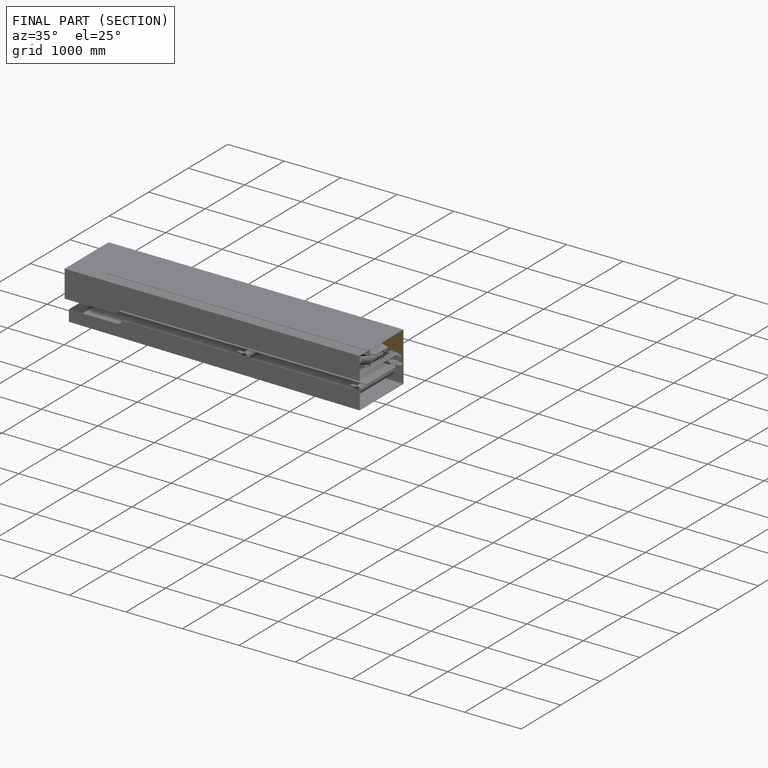
[diagram: finished part — half-section view (interior)]
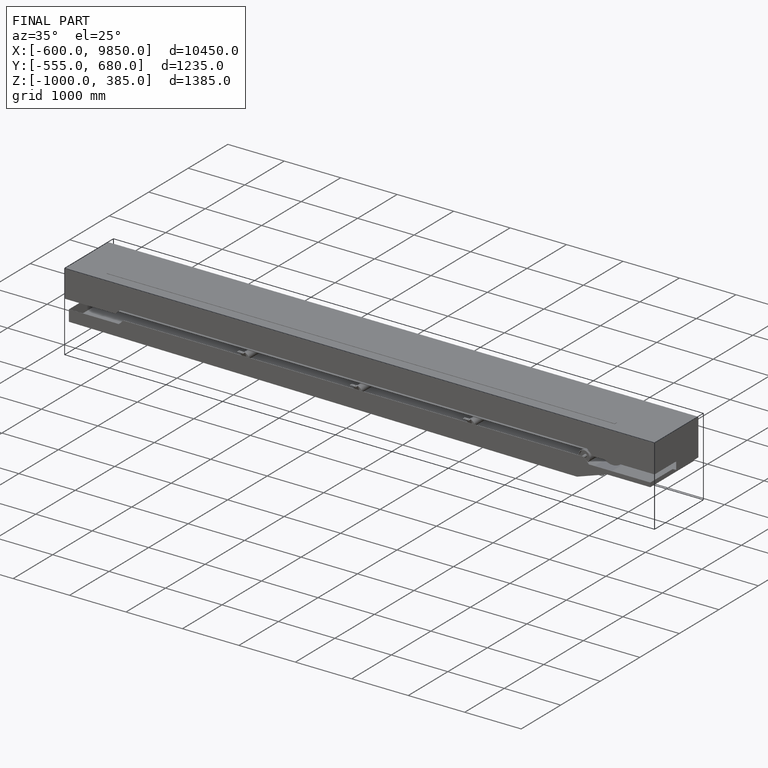
[diagram: finished part — iso view with bounding-box wireframe]
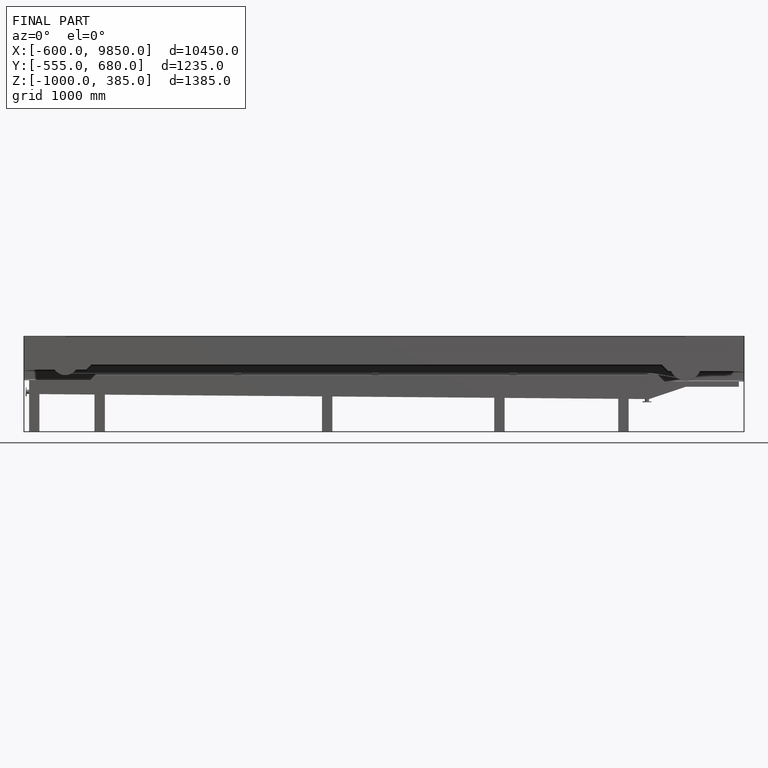
[diagram: finished part — front view with bounding-box wireframe]
